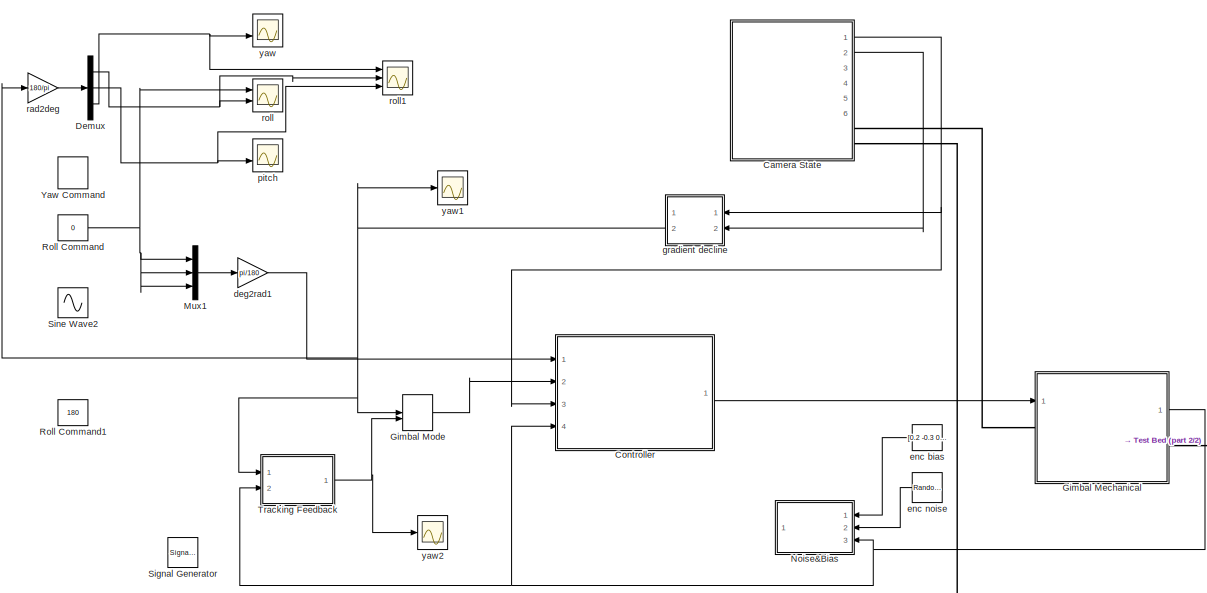
[diagram: root canvas - part 1/2, top center region]
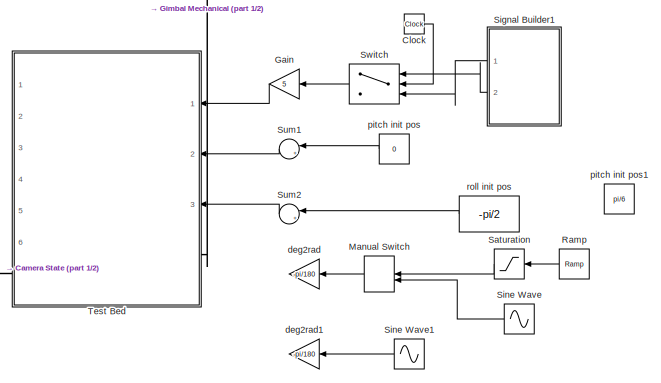
[diagram: root canvas - part 2/2, bottom right region]
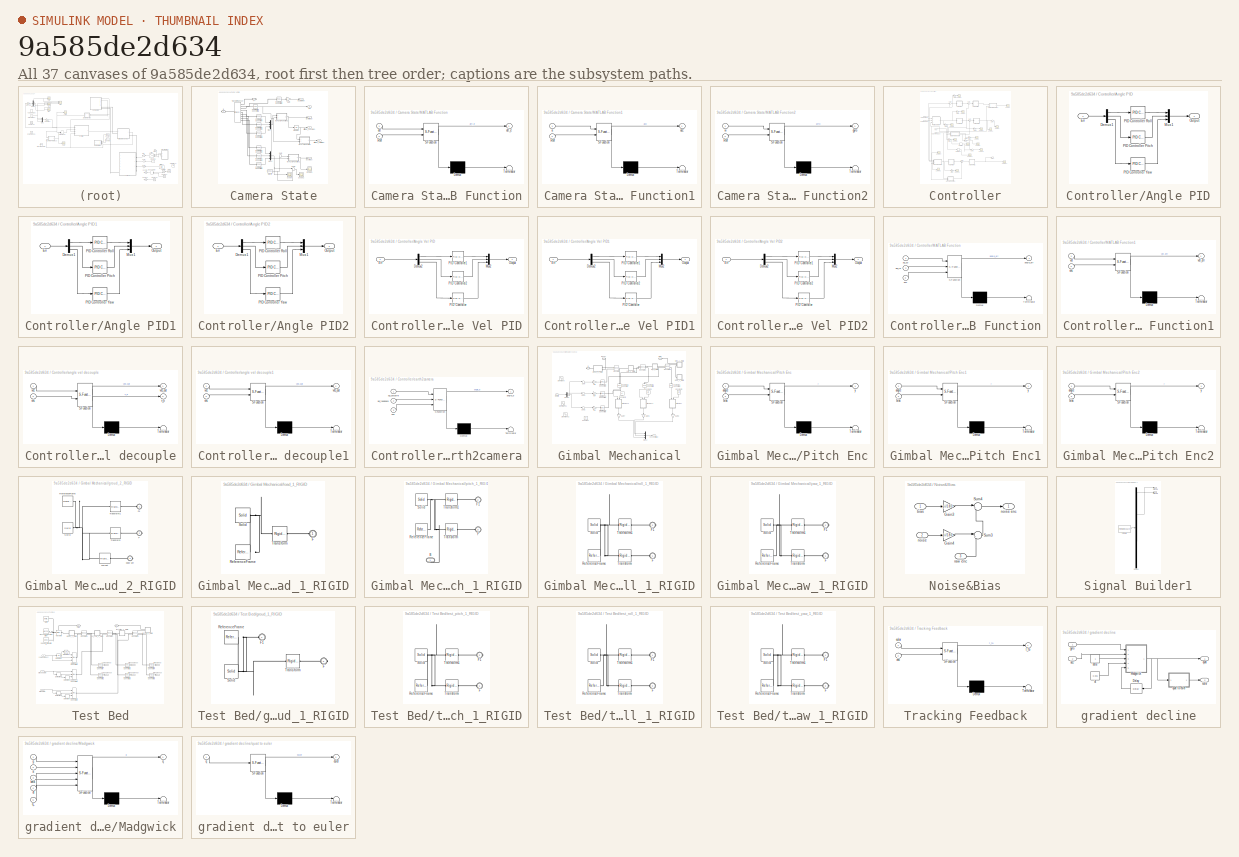
[diagram: thumbnail index - all 37 canvases of the model, root first then tree order]
MODEL slx_9a585de2d634
KIND model
CONFIG AbsTol = auto
CONFIG EnableMultiTasking = on
CONFIG FixedStep = 0.001
CONFIG MaxStep = auto
CONFIG MinStep = auto
CONFIG RelTol = 1e-3
CONFIG SampleTimeConstraint = Unconstrained
CONFIG Solver = ode14x
CONFIG SolverName = ode14x
CONFIG StartTime = 0.0
CONFIG StopTime = 10
BLOCK [SubSystem] Camera State
  Ports = [0, 6, 0, 0, 0, 0, 2]
  RequestExecContextInheritance = off
  Variant = off
BLOCK [PMIOPort] Camera State/B
  Port = 2
  Side = Right
BLOCK [PMIOPort] Camera State/F
  Port = 1
  Side = Right
BLOCK [Gain] Camera State/Gain
  Gain = -1
  OutDataTypeStr = Inherit: Inherit via internal rule
  ParamDataTypeStr = Inherit: Inherit via internal rule
  SaturateOnIntegerOverflow = off
BLOCK [Integrator] Camera State/Integrator
  Ports = [1, 1]
BLOCK [SubSystem] Camera State/MATLAB Function
  ErrorFcn = Stateflow.Translate.translate
  PermitHierarchicalResolution = ExplicitOnly
  Ports = [2, 1]
  RequestExecContextInheritance = off
  SFBlockType = MATLAB Function
  TreatAsAtomicUnit = on
  Variant = off
BLOCK [Demux] Camera State/MATLAB Function/ Demux 
  Outputs = 1
  Ports = [1, 1]
BLOCK [S-Function] Camera State/MATLAB Function/ SFunction 
  EnableBusSupport = on
  FunctionName = sf_sfun
  PortCounts = [2 2]
  Ports = [2, 2]
  SFcnIsStateOwnerBlock = off
  SFunctionDeploymentMode = off
  Tag = Stateflow S-Function gimbal_test_optm_2018_03 7
BLOCK [Terminator] Camera State/MATLAB Function/ Terminator 
BLOCK [Inport] Camera State/MATLAB Function/RM
  IconDisplay = Port number
  Port = 2
BLOCK [Inport] Camera State/MATLAB Function/att
  IconDisplay = Port number
BLOCK [Outport] Camera State/MATLAB Function/att_e
  IconDisplay = Port number
BLOCK [SubSystem] Camera State/MATLAB Function1
  ErrorFcn = Stateflow.Translate.translate
  PermitHierarchicalResolution = ExplicitOnly
  Ports = [2, 1]
  RequestExecContextInheritance = off
  SFBlockType = MATLAB Function
  TreatAsAtomicUnit = on
  Variant = off
BLOCK [Demux] Camera State/MATLAB Function1/ Demux 
  Outputs = 1
  Ports = [1, 1]
BLOCK [S-Function] Camera State/MATLAB Function1/ SFunction 
  EnableBusSupport = on
  FunctionName = sf_sfun
  PortCounts = [2 2]
  Ports = [2, 2]
  SFcnIsStateOwnerBlock = off
  SFunctionDeploymentMode = off
  Tag = Stateflow S-Function gimbal_test_optm_2018_03 13
BLOCK [Terminator] Camera State/MATLAB Function1/ Terminator 
BLOCK [Inport] Camera State/MATLAB Function1/RM
  IconDisplay = Port number
  Port = 2
BLOCK [Inport] Camera State/MATLAB Function1/a
  IconDisplay = Port number
BLOCK [Outport] Camera State/MATLAB Function1/acc
  IconDisplay = Port number
BLOCK [SubSystem] Camera State/MATLAB Function2
  ErrorFcn = Stateflow.Translate.translate
  PermitHierarchicalResolution = ExplicitOnly
  Ports = [2, 1]
  RequestExecContextInheritance = off
  SFBlockType = MATLAB Function
  TreatAsAtomicUnit = on
  Variant = off
BLOCK [Demux] Camera State/MATLAB Function2/ Demux 
  Outputs = 1
  Ports = [1, 1]
BLOCK [S-Function] Camera State/MATLAB Function2/ SFunction 
  EnableBusSupport = on
  FunctionName = sf_sfun
  PortCounts = [2 2]
  Ports = [2, 2]
  SFcnIsStateOwnerBlock = off
  SFunctionDeploymentMode = off
  Tag = Stateflow S-Function gimbal_test_optm_2018_03 11
BLOCK [Terminator] Camera State/MATLAB Function2/ Terminator 
BLOCK [Inport] Camera State/MATLAB Function2/RM
  IconDisplay = Port number
  Port = 2
BLOCK [Outport] Camera State/MATLAB Function2/gyro
  IconDisplay = Port number
BLOCK [Inport] Camera State/MATLAB Function2/w
  IconDisplay = Port number
BLOCK [Mux] Camera State/Mux
  DisplayOption = bar
  Inputs = 3
  Ports = [3, 1]
BLOCK [Mux] Camera State/Mux1
  DisplayOption = bar
  Inputs = 3
  Ports = [3, 1]
BLOCK [Reference] Camera State/PS-Simulink Converter1  REF=nesl_utility/PS-Simulink
Converter
  Ports = [0, 1, 0, 0, 0, 1]
  SourceBlock = nesl_utility/PS-Simulink\nConverter
  SourceProductBaseCode = SS
  SourceProductName = Simscape
  SourceType = PS-Simulink\nConverter
BLOCK [Reference] Camera State/PS-Simulink Converter2  REF=nesl_utility/PS-Simulink
Converter
  Ports = [0, 1, 0, 0, 0, 1]
  SourceBlock = nesl_utility/PS-Simulink\nConverter
  SourceProductBaseCode = SS
  SourceProductName = Simscape
  SourceType = PS-Simulink\nConverter
BLOCK [Reference] Camera State/PS-Simulink Converter3  REF=nesl_utility/PS-Simulink
Converter
  Ports = [0, 1, 0, 0, 0, 1]
  SourceBlock = nesl_utility/PS-Simulink\nConverter
  SourceProductBaseCode = SS
  SourceProductName = Simscape
  SourceType = PS-Simulink\nConverter
BLOCK [Reference] Camera State/PS-Simulink Converter4  REF=nesl_utility/PS-Simulink
Converter
  Ports = [0, 1, 0, 0, 0, 1]
  SourceBlock = nesl_utility/PS-Simulink\nConverter
  SourceProductBaseCode = SS
  SourceProductName = Simscape
  SourceType = PS-Simulink\nConverter
BLOCK [Reference] Camera State/PS-Simulink Converter6  REF=nesl_utility/PS-Simulink
Converter
  Ports = [0, 1, 0, 0, 0, 1]
  SourceBlock = nesl_utility/PS-Simulink\nConverter
  SourceProductBaseCode = SS
  SourceProductName = Simscape
  SourceType = PS-Simulink\nConverter
BLOCK [Reference] Camera State/PS-Simulink Converter7  REF=nesl_utility/PS-Simulink
Converter
  Ports = [0, 1, 0, 0, 0, 1]
  SourceBlock = nesl_utility/PS-Simulink\nConverter
  SourceProductBaseCode = SS
  SourceProductName = Simscape
  SourceType = PS-Simulink\nConverter
BLOCK [Reference] Camera State/PS-Simulink Converter8  REF=nesl_utility/PS-Simulink
Converter
  Ports = [0, 1, 0, 0, 0, 1]
  SourceBlock = nesl_utility/PS-Simulink\nConverter
  SourceProductBaseCode = SS
  SourceProductName = Simscape
  SourceType = PS-Simulink\nConverter
BLOCK [Reference] Camera State/PS-Simulink Converter9  REF=nesl_utility/PS-Simulink
Converter
  Ports = [0, 1, 0, 0, 0, 1]
  SourceBlock = nesl_utility/PS-Simulink\nConverter
  SourceProductBaseCode = SS
  SourceProductName = Simscape
  SourceType = PS-Simulink\nConverter
BLOCK [Outport] Camera State/RM
  IconDisplay = Port number
  Port = 4
BLOCK [Scope] Camera State/Scope
  NumInputPorts = 1
  Ports = [1]
  ScopeSpecificationString = Simulink.scopes.TimeScopeBlockCfg('CurrentConfiguration', extmgr.ConfigurationSet(extmgr.Configuration('Core','General UI',true),extmgr.Configuration('Core','Source UI',true),extmgr.Configuration('Sources','WiredSimulink',true,'DataLoggingVariableName','ScopeData2'),extmgr.Configuration('Visuals','Time Domain',true,'SerializedDisplays',{struct('MinYLimReal','-62.38144','MaxYLimReal','40.43998','YL...<+1485ch>
BLOCK [Scope] Camera State/Scope1
  NumInputPorts = 1
  Ports = [1]
  ScopeSpecificationString = Simulink.scopes.TimeScopeBlockCfg('CurrentConfiguration', extmgr.ConfigurationSet(extmgr.Configuration('Core','General UI',true),extmgr.Configuration('Core','Source UI',true),extmgr.Configuration('Sources','WiredSimulink',true,'DataLoggingVariableName','ScopeData5'),extmgr.Configuration('Visuals','Time Domain',true,'SerializedDisplays',{struct('MinYLimReal','-11.33628','MaxYLimReal','3.92654','YLa...<+1471ch>
BLOCK [Scope] Camera State/Scope2
  NumInputPorts = 1
  Ports = [1]
  ScopeSpecificationString = Simulink.scopes.TimeScopeBlockCfg('CurrentConfiguration', extmgr.ConfigurationSet(extmgr.Configuration('Core','General UI',true),extmgr.Configuration('Core','Source UI',true),extmgr.Configuration('Sources','WiredSimulink',true,'DataLoggingVariableName','ScopeData6'),extmgr.Configuration('Visuals','Time Domain',true,'SerializedDisplays',{struct('MinYLimReal','-22.29282','MaxYLimReal','8.50216','YLa...<+1435ch>
BLOCK [Sum] Camera State/Sum
  IconShape = round
  InputSameDT = off
  Inputs = |++
  OutDataTypeStr = Inherit: Inherit via internal rule
  Ports = [2, 1]
  SaturateOnIntegerOverflow = off
BLOCK [Sum] Camera State/Sum1
  IconShape = round
  InputSameDT = off
  Inputs = |++
  OutDataTypeStr = Inherit: Inherit via internal rule
  Ports = [2, 1]
  SaturateOnIntegerOverflow = off
BLOCK [Reference] Camera State/Transform Sensor  REF=sm_lib/Frames and
Transforms/Transform
Sensor
  Ports = [0, 0, 0, 0, 0, 1, 9]
  SourceBlock = sm_lib/Frames and\nTransforms/Transform\nSensor
  SourceProductBaseCode = MS
  SourceProductName = Simscape Multibody
  SourceType = Transform\nSensor
BLOCK [Outport] Camera State/acc (m//ss)
  IconDisplay = Port number
  Port = 2
BLOCK [Outport] Camera State/attitude_body (rad)
  IconDisplay = Port number
  Port = 3
BLOCK [Outport] Camera State/attitude_earth (rad)
  IconDisplay = Port number
  Port = 6
BLOCK [Constant] Camera State/gravity 
  Value = [0 0 -9.81]
BLOCK [Outport] Camera State/gyro (rad//s)
  IconDisplay = Port number
BLOCK [Outport] Camera State/quaternion 
  IconDisplay = Port number
  Port = 5
BLOCK [Clock] Clock
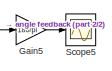
[diagram: Controller - part 1/2, top center region]
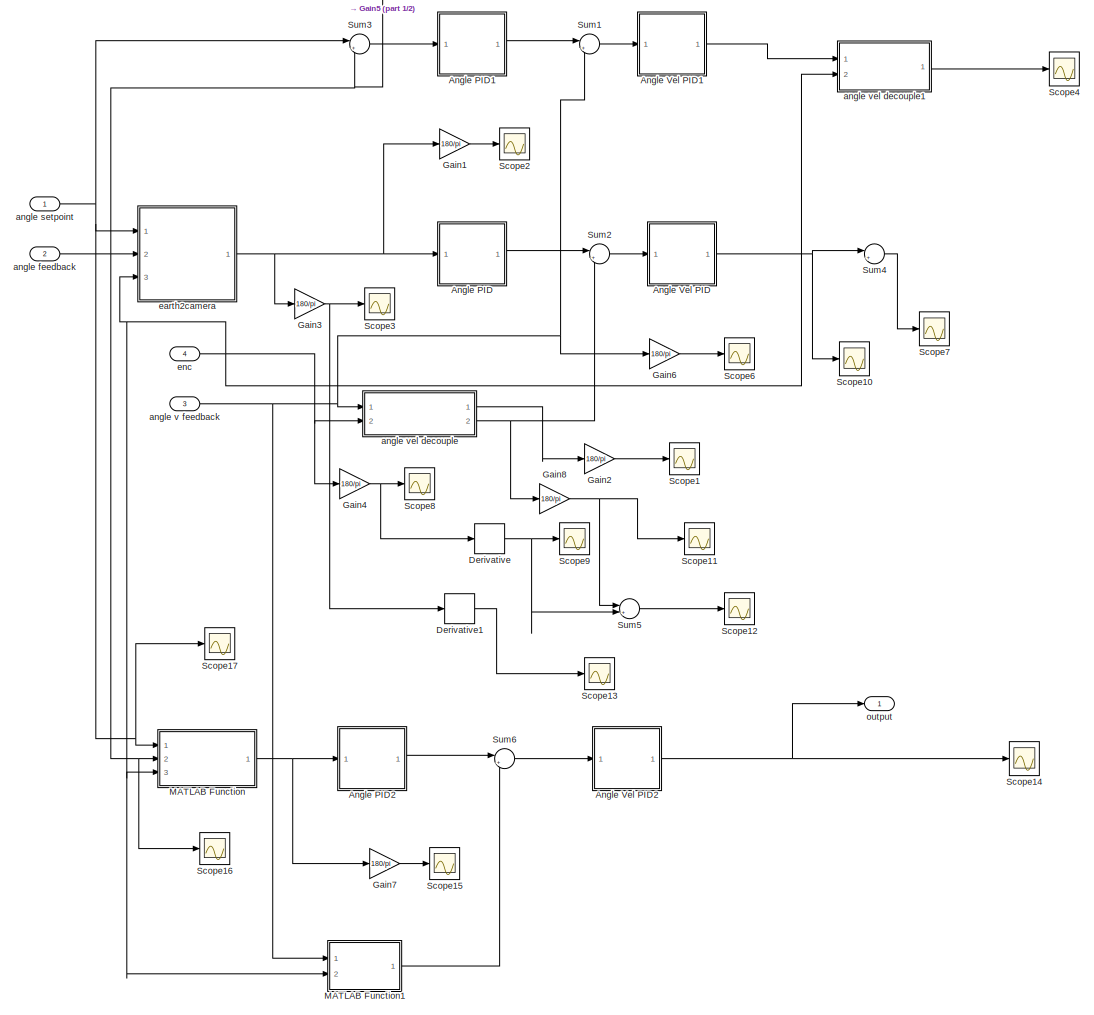
[diagram: Controller - part 2/2, most of the canvas]
BLOCK [SubSystem] Controller
  Ports = [4, 1]
  RequestExecContextInheritance = off
  TreatAsAtomicUnit = on
  Variant = off
BLOCK [SubSystem] Controller/Angle PID
  Ports = [1, 1]
  RequestExecContextInheritance = off
  Variant = off
BLOCK [Demux] Controller/Angle PID/Demux1
  DisplayOption = bar
  Outputs = 3
  Ports = [1, 3]
BLOCK [Inport] Controller/Angle PID/Err
  IconDisplay = Port number
BLOCK [Mux] Controller/Angle PID/Mux1
  DisplayOption = bar
  Inputs = 3
  Ports = [3, 1]
BLOCK [Outport] Controller/Angle PID/Output
  IconDisplay = Port number
BLOCK [Reference] Controller/Angle PID/PID Controller Pitch  REF=simulink/Continuous/PID Controller
  Ports = [1, 1]
  SourceBlock = simulink/Continuous/PID Controller
  SourceProductBaseCode = SL
  SourceProductName = Simulink
  SourceType = PID 1dof
BLOCK [Reference] Controller/Angle PID/PID Controller Roll  REF=simulink/Continuous/PID Controller
  Ports = [1, 1]
  SourceBlock = simulink/Continuous/PID Controller
  SourceProductBaseCode = SL
  SourceProductName = Simulink
  SourceType = PID 1dof
BLOCK [Reference] Controller/Angle PID/PID Controller Yaw  REF=simulink/Continuous/PID Controller
  Ports = [1, 1]
  SourceBlock = simulink/Continuous/PID Controller
  SourceProductBaseCode = SL
  SourceProductName = Simulink
  SourceType = PID 1dof
BLOCK [SubSystem] Controller/Angle PID1
  Ports = [1, 1]
  RequestExecContextInheritance = off
  Variant = off
BLOCK [Demux] Controller/Angle PID1/Demux1
  DisplayOption = bar
  Outputs = 3
  Ports = [1, 3]
BLOCK [Inport] Controller/Angle PID1/Err
  IconDisplay = Port number
BLOCK [Mux] Controller/Angle PID1/Mux1
  DisplayOption = bar
  Inputs = 3
  Ports = [3, 1]
BLOCK [Outport] Controller/Angle PID1/Output
  IconDisplay = Port number
BLOCK [Reference] Controller/Angle PID1/PID Controller Pitch  REF=simulink/Continuous/PID Controller
  Ports = [1, 1]
  SourceBlock = simulink/Continuous/PID Controller
  SourceProductBaseCode = SL
  SourceProductName = Simulink
  SourceType = PID 1dof
BLOCK [Reference] Controller/Angle PID1/PID Controller Roll  REF=simulink/Continuous/PID Controller
  Ports = [1, 1]
  SourceBlock = simulink/Continuous/PID Controller
  SourceProductBaseCode = SL
  SourceProductName = Simulink
  SourceType = PID 1dof
BLOCK [Reference] Controller/Angle PID1/PID Controller Yaw  REF=simulink/Continuous/PID Controller
  Ports = [1, 1]
  SourceBlock = simulink/Continuous/PID Controller
  SourceProductBaseCode = SL
  SourceProductName = Simulink
  SourceType = PID 1dof
BLOCK [SubSystem] Controller/Angle PID2
  Ports = [1, 1]
  RequestExecContextInheritance = off
  Variant = off
BLOCK [Demux] Controller/Angle PID2/Demux1
  DisplayOption = bar
  Outputs = 3
  Ports = [1, 3]
BLOCK [Inport] Controller/Angle PID2/Err
  IconDisplay = Port number
BLOCK [Mux] Controller/Angle PID2/Mux1
  DisplayOption = bar
  Inputs = 3
  Ports = [3, 1]
BLOCK [Outport] Controller/Angle PID2/Output
  IconDisplay = Port number
BLOCK [Reference] Controller/Angle PID2/PID Controller Pitch  REF=simulink/Continuous/PID Controller
  Ports = [1, 1]
  SourceBlock = simulink/Continuous/PID Controller
  SourceProductBaseCode = SL
  SourceProductName = Simulink
  SourceType = PID 1dof
BLOCK [Reference] Controller/Angle PID2/PID Controller Roll  REF=simulink/Continuous/PID Controller
  Ports = [1, 1]
  SourceBlock = simulink/Continuous/PID Controller
  SourceProductBaseCode = SL
  SourceProductName = Simulink
  SourceType = PID 1dof
BLOCK [Reference] Controller/Angle PID2/PID Controller Yaw  REF=simulink/Continuous/PID Controller
  Ports = [1, 1]
  SourceBlock = simulink/Continuous/PID Controller
  SourceProductBaseCode = SL
  SourceProductName = Simulink
  SourceType = PID 1dof
BLOCK [SubSystem] Controller/Angle Vel PID
  Ports = [1, 1]
  RequestExecContextInheritance = off
  Variant = off
BLOCK [Demux] Controller/Angle Vel PID/Demux2
  DisplayOption = bar
  Outputs = 3
  Ports = [1, 3]
BLOCK [Inport] Controller/Angle Vel PID/Err
  IconDisplay = Port number
BLOCK [Mux] Controller/Angle Vel PID/Mux2
  DisplayOption = bar
  Inputs = 3
  Ports = [3, 1]
BLOCK [Outport] Controller/Angle Vel PID/Output
  IconDisplay = Port number
BLOCK [Reference] Controller/Angle Vel PID/PID Controller  REF=simulink/Continuous/PID Controller
  Ports = [1, 1]
  SourceBlock = simulink/Continuous/PID Controller
  SourceProductBaseCode = SL
  SourceProductName = Simulink
  SourceType = PID 1dof
BLOCK [Reference] Controller/Angle Vel PID/PID Controller1  REF=simulink/Continuous/PID Controller
  Ports = [1, 1]
  SourceBlock = simulink/Continuous/PID Controller
  SourceProductBaseCode = SL
  SourceProductName = Simulink
  SourceType = PID 1dof
BLOCK [Reference] Controller/Angle Vel PID/PID Controller2  REF=simulink/Continuous/PID Controller
  Ports = [1, 1]
  SourceBlock = simulink/Continuous/PID Controller
  SourceProductBaseCode = SL
  SourceProductName = Simulink
  SourceType = PID 1dof
BLOCK [SubSystem] Controller/Angle Vel PID1
  Ports = [1, 1]
  RequestExecContextInheritance = off
  Variant = off
BLOCK [Demux] Controller/Angle Vel PID1/Demux2
  DisplayOption = bar
  Outputs = 3
  Ports = [1, 3]
BLOCK [Inport] Controller/Angle Vel PID1/Err
  IconDisplay = Port number
BLOCK [Mux] Controller/Angle Vel PID1/Mux2
  DisplayOption = bar
  Inputs = 3
  Ports = [3, 1]
BLOCK [Outport] Controller/Angle Vel PID1/Output
  IconDisplay = Port number
BLOCK [Reference] Controller/Angle Vel PID1/PID Controller  REF=simulink/Continuous/PID Controller
  Ports = [1, 1]
  SourceBlock = simulink/Continuous/PID Controller
  SourceProductBaseCode = SL
  SourceProductName = Simulink
  SourceType = PID 1dof
BLOCK [Reference] Controller/Angle Vel PID1/PID Controller1  REF=simulink/Continuous/PID Controller
  Ports = [1, 1]
  SourceBlock = simulink/Continuous/PID Controller
  SourceProductBaseCode = SL
  SourceProductName = Simulink
  SourceType = PID 1dof
BLOCK [Reference] Controller/Angle Vel PID1/PID Controller2  REF=simulink/Continuous/PID Controller
  Ports = [1, 1]
  SourceBlock = simulink/Continuous/PID Controller
  SourceProductBaseCode = SL
  SourceProductName = Simulink
  SourceType = PID 1dof
BLOCK [SubSystem] Controller/Angle Vel PID2
  Ports = [1, 1]
  RequestExecContextInheritance = off
  Variant = off
BLOCK [Demux] Controller/Angle Vel PID2/Demux2
  DisplayOption = bar
  Outputs = 3
  Ports = [1, 3]
BLOCK [Inport] Controller/Angle Vel PID2/Err
  IconDisplay = Port number
BLOCK [Mux] Controller/Angle Vel PID2/Mux2
  DisplayOption = bar
  Inputs = 3
  Ports = [3, 1]
BLOCK [Outport] Controller/Angle Vel PID2/Output
  IconDisplay = Port number
BLOCK [Reference] Controller/Angle Vel PID2/PID Controller  REF=simulink/Continuous/PID Controller
  Ports = [1, 1]
  SourceBlock = simulink/Continuous/PID Controller
  SourceProductBaseCode = SL
  SourceProductName = Simulink
  SourceType = PID 1dof
BLOCK [Reference] Controller/Angle Vel PID2/PID Controller1  REF=simulink/Continuous/PID Controller
  Ports = [1, 1]
  SourceBlock = simulink/Continuous/PID Controller
  SourceProductBaseCode = SL
  SourceProductName = Simulink
  SourceType = PID 1dof
BLOCK [Reference] Controller/Angle Vel PID2/PID Controller2  REF=simulink/Continuous/PID Controller
  Ports = [1, 1]
  SourceBlock = simulink/Continuous/PID Controller
  SourceProductBaseCode = SL
  SourceProductName = Simulink
  SourceType = PID 1dof
BLOCK [Derivative] Controller/Derivative
BLOCK [Derivative] Controller/Derivative1
BLOCK [Gain] Controller/Gain1
  Gain = 180/pi
  OutDataTypeStr = Inherit: Inherit via internal rule
  ParamDataTypeStr = Inherit: Inherit via internal rule
  SaturateOnIntegerOverflow = off
BLOCK [Gain] Controller/Gain2
  Gain = 180/pi
  OutDataTypeStr = Inherit: Inherit via internal rule
  ParamDataTypeStr = Inherit: Inherit via internal rule
  SaturateOnIntegerOverflow = off
BLOCK [Gain] Controller/Gain3
  Gain = 180/pi
  OutDataTypeStr = Inherit: Inherit via internal rule
  ParamDataTypeStr = Inherit: Inherit via internal rule
  SaturateOnIntegerOverflow = off
BLOCK [Gain] Controller/Gain4
  Gain = 180/pi
  OutDataTypeStr = Inherit: Inherit via internal rule
  ParamDataTypeStr = Inherit: Inherit via internal rule
  SaturateOnIntegerOverflow = off
BLOCK [Gain] Controller/Gain5
  Gain = 180/pi
  OutDataTypeStr = Inherit: Inherit via internal rule
  ParamDataTypeStr = Inherit: Inherit via internal rule
  SaturateOnIntegerOverflow = off
BLOCK [Gain] Controller/Gain6
  Gain = 180/pi
  OutDataTypeStr = Inherit: Inherit via internal rule
  ParamDataTypeStr = Inherit: Inherit via internal rule
  SaturateOnIntegerOverflow = off
BLOCK [Gain] Controller/Gain7
  Gain = 180/pi
  OutDataTypeStr = Inherit: Inherit via internal rule
  ParamDataTypeStr = Inherit: Inherit via internal rule
  SaturateOnIntegerOverflow = off
BLOCK [Gain] Controller/Gain8
  Gain = 180/pi
  OutDataTypeStr = Inherit: Inherit via internal rule
  ParamDataTypeStr = Inherit: Inherit via internal rule
  SaturateOnIntegerOverflow = off
BLOCK [SubSystem] Controller/MATLAB Function
  ErrorFcn = Stateflow.Translate.translate
  PermitHierarchicalResolution = ExplicitOnly
  Ports = [3, 1]
  RequestExecContextInheritance = off
  SFBlockType = MATLAB Function
  TreatAsAtomicUnit = on
  Variant = off
BLOCK [Demux] Controller/MATLAB Function/ Demux 
  Outputs = 1
  Ports = [1, 1]
BLOCK [S-Function] Controller/MATLAB Function/ SFunction 
  EnableBusSupport = on
  FunctionName = sf_sfun
  PortCounts = [3 2]
  Ports = [3, 2]
  SFcnIsStateOwnerBlock = off
  SFunctionDeploymentMode = off
  Tag = Stateflow S-Function gimbal_test_optm_2018_03 8
BLOCK [Terminator] Controller/MATLAB Function/ Terminator 
BLOCK [Inport] Controller/MATLAB Function/ag_fb
  IconDisplay = Port number
  Port = 2
BLOCK [Inport] Controller/MATLAB Function/ag_sp
  IconDisplay = Port number
BLOCK [Outport] Controller/MATLAB Function/angle_err
  IconDisplay = Port number
BLOCK [Inport] Controller/MATLAB Function/enc
  IconDisplay = Port number
  Port = 3
BLOCK [SubSystem] Controller/MATLAB Function1
  ErrorFcn = Stateflow.Translate.translate
  PermitHierarchicalResolution = ExplicitOnly
  Ports = [2, 1]
  RequestExecContextInheritance = off
  SFBlockType = MATLAB Function
  TreatAsAtomicUnit = on
  Variant = off
BLOCK [Demux] Controller/MATLAB Function1/ Demux 
  Outputs = 1
  Ports = [1, 1]
BLOCK [S-Function] Controller/MATLAB Function1/ SFunction 
  EnableBusSupport = on
  FunctionName = sf_sfun
  PortCounts = [2 2]
  Ports = [2, 2]
  SFcnIsStateOwnerBlock = off
  SFunctionDeploymentMode = off
  Tag = Stateflow S-Function gimbal_test_optm_2018_03 12
BLOCK [Terminator] Controller/MATLAB Function1/ Terminator 
BLOCK [Inport] Controller/MATLAB Function1/enc
  IconDisplay = Port number
  Port = 2
BLOCK [Inport] Controller/MATLAB Function1/vel
  IconDisplay = Port number
BLOCK [Outport] Controller/MATLAB Function1/vel_err
  IconDisplay = Port number
BLOCK [Scope] Controller/Scope1
  NumInputPorts = 1
  Ports = [1]
  ScopeSpecificationString = Simulink.scopes.TimeScopeBlockCfg('CurrentConfiguration', extmgr.ConfigurationSet(extmgr.Configuration('Core','General UI',true),extmgr.Configuration('Core','Source UI',true),extmgr.Configuration('Sources','WiredSimulink',true,'DataLoggingVariableName','ScopeData3'),extmgr.Configuration('Visuals','Time Domain',true,'SerializedDisplays',{struct('MinYLimReal','-435.99121','MaxYLimReal','341.04444','...<+1429ch>
BLOCK [Scope] Controller/Scope10
  NumInputPorts = 1
  Ports = [1]
  ScopeSpecificationString = Simulink.scopes.TimeScopeBlockCfg('CurrentConfiguration', extmgr.ConfigurationSet(extmgr.Configuration('Core','General UI',true),extmgr.Configuration('Core','Source UI',true),extmgr.Configuration('Sources','WiredSimulink',true,'DataLoggingVariableName','ScopeData8'),extmgr.Configuration('Visuals','Time Domain',true,'SerializedDisplays',{struct('MinYLimReal','-13.15788','MaxYLimReal','14.61117','YL...<+1462ch>
BLOCK [Scope] Controller/Scope11
  NumInputPorts = 1
  Ports = [1]
  ScopeSpecificationString = Simulink.scopes.TimeScopeBlockCfg('CurrentConfiguration', extmgr.ConfigurationSet(extmgr.Configuration('Core','General UI',true),extmgr.Configuration('Core','Source UI',true),extmgr.Configuration('Sources','WiredSimulink',true,'DataLoggingVariableName','ScopeData10'),extmgr.Configuration('Visuals','Time Domain',true,'SerializedDisplays',{struct('MinYLimReal','-2127.99792','MaxYLimReal','2054.90347...<+1456ch>
BLOCK [Scope] Controller/Scope12
  NumInputPorts = 1
  Ports = [1]
  ScopeSpecificationString = Simulink.scopes.TimeScopeBlockCfg('CurrentConfiguration', extmgr.ConfigurationSet(extmgr.Configuration('Core','General UI',true),extmgr.Configuration('Core','Source UI',true),extmgr.Configuration('Sources','WiredSimulink',true,'DataLoggingVariableName','ScopeData11'),extmgr.Configuration('Visuals','Time Domain',true,'SerializedDisplays',{struct('MinYLimReal','-450001.4782','MaxYLimReal','449975.08...<+1446ch>
BLOCK [Scope] Controller/Scope13
  NumInputPorts = 1
  Ports = [1]
  ScopeSpecificationString = Simulink.scopes.TimeScopeBlockCfg('CurrentConfiguration', extmgr.ConfigurationSet(extmgr.Configuration('Core','General UI',true),extmgr.Configuration('Core','Source UI',true),extmgr.Configuration('Sources','WiredSimulink',true,'DataLoggingVariableName','ScopeData12'),extmgr.Configuration('Visuals','Time Domain',true,'SerializedDisplays',{struct('MinYLimReal','-2246.02336','MaxYLimReal','1569.04695...<+1455ch>
BLOCK [Scope] Controller/Scope14
  NumInputPorts = 1
  Ports = [1]
  ScopeSpecificationString = Simulink.scopes.TimeScopeBlockCfg('CurrentConfiguration', extmgr.ConfigurationSet(extmgr.Configuration('Core','General UI',true),extmgr.Configuration('Core','Source UI',true),extmgr.Configuration('Sources','WiredSimulink',true,'DataLoggingVariableName','ScopeData1'),extmgr.Configuration('Visuals','Time Domain',true,'SerializedDisplays',{struct('MinYLimReal','-12.5','MaxYLimReal','12.5','YLabelReal...<+1423ch>
BLOCK [Scope] Controller/Scope15
  NumInputPorts = 1
  Ports = [1]
  ScopeSpecificationString = Simulink.scopes.TimeScopeBlockCfg('CurrentConfiguration', extmgr.ConfigurationSet(extmgr.Configuration('Core','General UI',true),extmgr.Configuration('Core','Source UI',true),extmgr.Configuration('Sources','WiredSimulink',true,'DataLoggingVariableName','ScopeData2'),extmgr.Configuration('Visuals','Time Domain',true,'SerializedDisplays',{struct('MinYLimReal','-224.99596','MaxYLimReal','224.99745','...<+1429ch>
BLOCK [Scope] Controller/Scope16
  NumInputPorts = 1
  Ports = [1]
  ScopeSpecificationString = Simulink.scopes.TimeScopeBlockCfg('CurrentConfiguration', extmgr.ConfigurationSet(extmgr.Configuration('Core','General UI',true),extmgr.Configuration('Core','Source UI',true),extmgr.Configuration('Sources','WiredSimulink',true,'DataLoggingVariableName','ScopeData2'),extmgr.Configuration('Visuals','Time Domain',true,'SerializedDisplays',{struct('MinYLimReal','-3.92634','MaxYLimReal','3.92601','YLab...<+1442ch>
BLOCK [Scope] Controller/Scope17
  NumInputPorts = 1
  Ports = [1]
  ScopeSpecificationString = Simulink.scopes.TimeScopeBlockCfg('CurrentConfiguration', extmgr.ConfigurationSet(extmgr.Configuration('Core','General UI',true),extmgr.Configuration('Core','Source UI',true),extmgr.Configuration('Sources','WiredSimulink',true,'DataLoggingVariableName','ScopeData3'),extmgr.Configuration('Visuals','Time Domain',true,'SerializedDisplays',{struct('MinYLimReal','-1.00000','MaxYLimReal','1.00000','YLab...<+1442ch>
BLOCK [Scope] Controller/Scope2
  NumInputPorts = 1
  Ports = [1]
  ScopeSpecificationString = Simulink.scopes.TimeScopeBlockCfg('CurrentConfiguration', extmgr.ConfigurationSet(extmgr.Configuration('Core','General UI',true),extmgr.Configuration('Core','Source UI',true),extmgr.Configuration('Sources','WiredSimulink',true,'DataLoggingVariableName','ScopeData4'),extmgr.Configuration('Visuals','Time Domain',true,'SerializedDisplays',{struct('MinYLimReal','-233.60532','MaxYLimReal','303.26334','...<+1429ch>
BLOCK [Scope] Controller/Scope3
  NumInputPorts = 1
  Ports = [1]
  ScopeSpecificationString = Simulink.scopes.TimeScopeBlockCfg('CurrentConfiguration', extmgr.ConfigurationSet(extmgr.Configuration('Core','General UI',true),extmgr.Configuration('Core','Source UI',true),extmgr.Configuration('Sources','WiredSimulink',true,'DataLoggingVariableName','ScopeData6'),extmgr.Configuration('Visuals','Time Domain',true,'SerializedDisplays',{struct('MinYLimReal','-1.25179','MaxYLimReal','1.1258','YLabe...<+1431ch>
BLOCK [Scope] Controller/Scope4
  NumInputPorts = 1
  Ports = [1]
  ScopeSpecificationString = Simulink.scopes.TimeScopeBlockCfg('CurrentConfiguration', extmgr.ConfigurationSet(extmgr.Configuration('Core','General UI',true),extmgr.Configuration('Core','Source UI',true),extmgr.Configuration('Sources','WiredSimulink',true,'DataLoggingVariableName','ScopeData3'),extmgr.Configuration('Visuals','Time Domain',true,'SerializedDisplays',{struct('MinYLimReal','-13.78266','MaxYLimReal','2.53326','YLa...<+1460ch>
BLOCK [Scope] Controller/Scope5
  NumInputPorts = 1
  Ports = [1]
  ScopeSpecificationString = Simulink.scopes.TimeScopeBlockCfg('CurrentConfiguration', extmgr.ConfigurationSet(extmgr.Configuration('Core','General UI',true),extmgr.Configuration('Core','Source UI',true),extmgr.Configuration('Sources','WiredSimulink',true,'DataLoggingVariableName','ScopeData1'),extmgr.Configuration('Visuals','Time Domain',true,'SerializedDisplays',{struct('MinYLimReal','-224.9978','MaxYLimReal','224.99058','Y...<+1423ch>
BLOCK [Scope] Controller/Scope6
  NumInputPorts = 1
  Ports = [1]
  ScopeSpecificationString = Simulink.scopes.TimeScopeBlockCfg('CurrentConfiguration', extmgr.ConfigurationSet(extmgr.Configuration('Core','General UI',true),extmgr.Configuration('Core','Source UI',true),extmgr.Configuration('Sources','WiredSimulink',true,'DataLoggingVariableName','ScopeData2'),extmgr.Configuration('Visuals','Time Domain',true,'SerializedDisplays',{struct('MinYLimReal','-467.04289','MaxYLimReal','370.30723','...<+1428ch>
BLOCK [Scope] Controller/Scope7
  NumInputPorts = 1
  Ports = [1]
  ScopeSpecificationString = Simulink.scopes.TimeScopeBlockCfg('CurrentConfiguration', extmgr.ConfigurationSet(extmgr.Configuration('Core','General UI',true),extmgr.Configuration('Core','Source UI',true),extmgr.Configuration('Sources','WiredSimulink',true,'DataLoggingVariableName','ScopeData4'),extmgr.Configuration('Visuals','Time Domain',true,'SerializedDisplays',{struct('MinYLimReal','-11.89221','MaxYLimReal','7.02992','YLa...<+1415ch>
BLOCK [Scope] Controller/Scope8
  NumInputPorts = 1
  Ports = [1]
  ScopeSpecificationString = Simulink.scopes.TimeScopeBlockCfg('CurrentConfiguration', extmgr.ConfigurationSet(extmgr.Configuration('Core','General UI',true),extmgr.Configuration('Core','Source UI',true),extmgr.Configuration('Sources','WiredSimulink',true,'DataLoggingVariableName','ScopeData5'),extmgr.Configuration('Visuals','Time Domain',true,'SerializedDisplays',{struct('MinYLimReal','-224.98903','MaxYLimReal','224.995','YL...<+1419ch>
BLOCK [Scope] Controller/Scope9
  NumInputPorts = 1
  Ports = [1]
  ScopeSpecificationString = Simulink.scopes.TimeScopeBlockCfg('CurrentConfiguration', extmgr.ConfigurationSet(extmgr.Configuration('Core','General UI',true),extmgr.Configuration('Core','Source UI',true),extmgr.Configuration('Sources','WiredSimulink',true,'DataLoggingVariableName','ScopeData9'),extmgr.Configuration('Visuals','Time Domain',true,'SerializedDisplays',{struct('MinYLimReal','-1149.47294','MaxYLimReal','1385.68005'...<+1470ch>
BLOCK [Sum] Controller/Sum1
  IconShape = round
  InputSameDT = off
  Inputs = |+-
  OutDataTypeStr = Inherit: Inherit via internal rule
  Ports = [2, 1]
  SaturateOnIntegerOverflow = off
BLOCK [Sum] Controller/Sum2
  IconShape = round
  InputSameDT = off
  Inputs = |+-
  OutDataTypeStr = Inherit: Inherit via internal rule
  Ports = [2, 1]
  SaturateOnIntegerOverflow = off
BLOCK [Sum] Controller/Sum3
  IconShape = round
  InputSameDT = off
  Inputs = |+-
  OutDataTypeStr = Inherit: Inherit via internal rule
  Ports = [2, 1]
  SaturateOnIntegerOverflow = off
BLOCK [Sum] Controller/Sum4
  IconShape = round
  InputSameDT = off
  Inputs = |+-
  OutDataTypeStr = Inherit: Inherit via internal rule
  Ports = [2, 1]
  SaturateOnIntegerOverflow = off
BLOCK [Sum] Controller/Sum5
  IconShape = round
  InputSameDT = off
  Inputs = |+-
  OutDataTypeStr = Inherit: Inherit via internal rule
  Ports = [2, 1]
  SaturateOnIntegerOverflow = off
BLOCK [Sum] Controller/Sum6
  IconShape = round
  InputSameDT = off
  Inputs = |+-
  OutDataTypeStr = Inherit: Inherit via internal rule
  Ports = [2, 1]
  SaturateOnIntegerOverflow = off
BLOCK [Inport] Controller/angle feedback
  IconDisplay = Port number
  Port = 2
BLOCK [Inport] Controller/angle setpoint
  IconDisplay = Port number
BLOCK [Inport] Controller/angle v feedback
  IconDisplay = Port number
  Port = 3
BLOCK [SubSystem] Controller/angle vel decouple
  ErrorFcn = Stateflow.Translate.translate
  PermitHierarchicalResolution = ExplicitOnly
  Ports = [2, 2]
  RequestExecContextInheritance = off
  SFBlockType = MATLAB Function
  TreatAsAtomicUnit = on
  Variant = off
BLOCK [Demux] Controller/angle vel decouple/ Demux 
  Outputs = 1
  Ports = [1, 1]
BLOCK [S-Function] Controller/angle vel decouple/ SFunction 
  EnableBusSupport = on
  FunctionName = sf_sfun
  PortCounts = [2 3]
  Ports = [2, 3]
  SFcnIsStateOwnerBlock = off
  SFunctionDeploymentMode = off
  Tag = Stateflow S-Function gimbal_test_optm_2018_03 9
BLOCK [Terminator] Controller/angle vel decouple/ Terminator 
BLOCK [Inport] Controller/angle vel decouple/enc
  IconDisplay = Port number
  Port = 2
BLOCK [Outport] Controller/angle vel decouple/v_b
  IconDisplay = Port number
  Port = 2
BLOCK [Inport] Controller/angle vel decouple/vec
  IconDisplay = Port number
BLOCK [Outport] Controller/angle vel decouple/vec_out
  IconDisplay = Port number
BLOCK [SubSystem] Controller/angle vel decouple1
  ErrorFcn = Stateflow.Translate.translate
  PermitHierarchicalResolution = ExplicitOnly
  Ports = [2, 1]
  RequestExecContextInheritance = off
  SFBlockType = MATLAB Function
  TreatAsAtomicUnit = on
  Variant = off
BLOCK [Demux] Controller/angle vel decouple1/ Demux 
  Outputs = 1
  Ports = [1, 1]
BLOCK [S-Function] Controller/angle vel decouple1/ SFunction 
  EnableBusSupport = on
  FunctionName = sf_sfun
  PortCounts = [2 2]
  Ports = [2, 2]
  SFcnIsStateOwnerBlock = off
  SFunctionDeploymentMode = off
  Tag = Stateflow S-Function gimbal_test_optm_2018_03 10
BLOCK [Terminator] Controller/angle vel decouple1/ Terminator 
BLOCK [Inport] Controller/angle vel decouple1/enc
  IconDisplay = Port number
  Port = 2
BLOCK [Inport] Controller/angle vel decouple1/vec
  IconDisplay = Port number
BLOCK [Outport] Controller/angle vel decouple1/vec_out
  IconDisplay = Port number
BLOCK [SubSystem] Controller/earth2camera
  ErrorFcn = Stateflow.Translate.translate
  PermitHierarchicalResolution = ExplicitOnly
  Ports = [3, 1]
  RequestExecContextInheritance = off
  SFBlockType = MATLAB Function
  TreatAsAtomicUnit = on
  Variant = off
BLOCK [Demux] Controller/earth2camera/ Demux 
  Outputs = 1
  Ports = [1, 1]
BLOCK [S-Function] Controller/earth2camera/ SFunction 
  EnableBusSupport = on
  FunctionName = sf_sfun
  PortCounts = [3 2]
  Ports = [3, 2]
  SFcnIsStateOwnerBlock = off
  SFunctionDeploymentMode = off
  Tag = Stateflow S-Function gimbal_test_optm_2018_03 2
BLOCK [Terminator] Controller/earth2camera/ Terminator 
BLOCK [Inport] Controller/earth2camera/ag_feedback
  IconDisplay = Port number
  Port = 2
BLOCK [Inport] Controller/earth2camera/ag_setpoint
  IconDisplay = Port number
BLOCK [Outport] Controller/earth2camera/angle_e
  IconDisplay = Port number
BLOCK [Inport] Controller/earth2camera/enc
  IconDisplay = Port number
  Port = 3
BLOCK [Inport] Controller/enc 
  IconDisplay = Port number
  Port = 4
BLOCK [Outport] Controller/output
  IconDisplay = Port number
BLOCK [Demux] Demux
  DisplayOption = bar
  Outputs = 3
  Ports = [1, 3]
BLOCK [Gain] Gain
  Gain = 5
  OutDataTypeStr = Inherit: Inherit via internal rule
  ParamDataTypeStr = Inherit: Inherit via internal rule
  SaturateOnIntegerOverflow = off
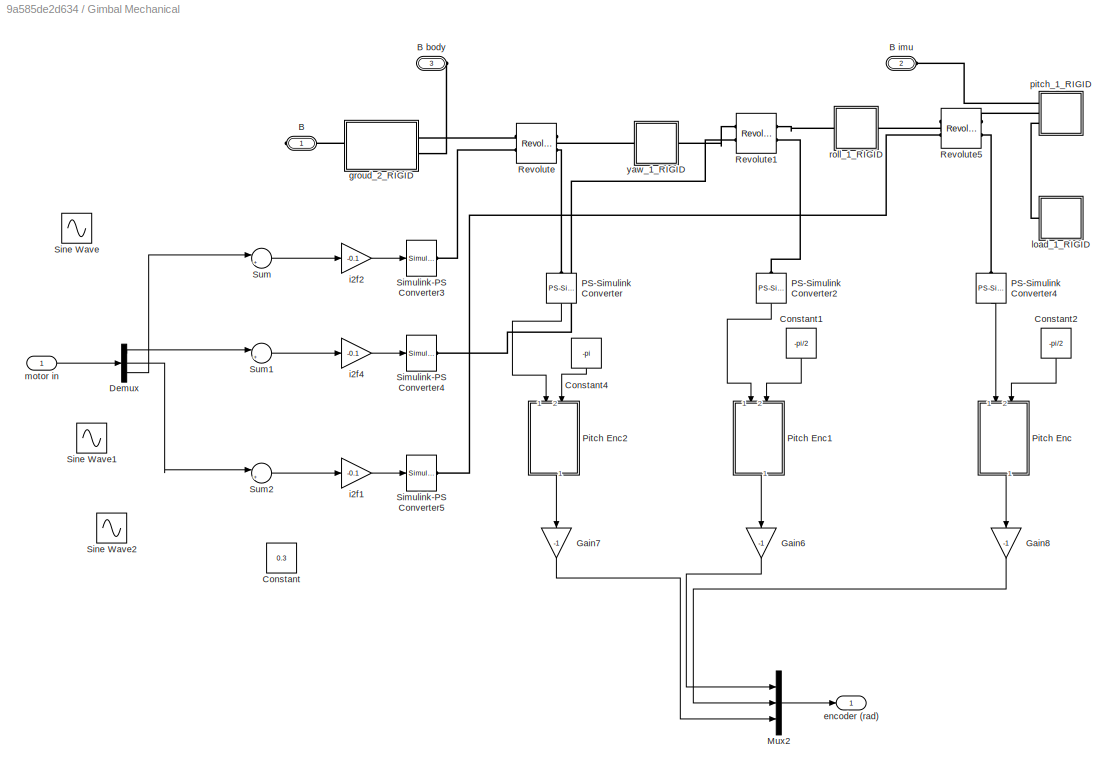
BLOCK [SubSystem] Gimbal Mechanical
  Ports = [1, 1, 0, 0, 0, 2, 1]
  RequestExecContextInheritance = off
  Variant = off
BLOCK [PMIOPort] Gimbal Mechanical/B
  Port = 1
  Side = Right
BLOCK [PMIOPort] Gimbal Mechanical/B body
  Port = 3
  Side = Left
BLOCK [PMIOPort] Gimbal Mechanical/B imu
  Port = 2
  Side = Left
BLOCK [Constant] Gimbal Mechanical/Constant
  Value = 0.3
BLOCK [Constant] Gimbal Mechanical/Constant1
  Value = -pi/2
BLOCK [Constant] Gimbal Mechanical/Constant2
  Value = -pi/2
BLOCK [Constant] Gimbal Mechanical/Constant4
  Value = -pi
BLOCK [Demux] Gimbal Mechanical/Demux
  DisplayOption = bar
  Outputs = 3
  Ports = [1, 3]
BLOCK [Gain] Gimbal Mechanical/Gain6
  Gain = -1
  OutDataTypeStr = Inherit: Inherit via internal rule
  ParamDataTypeStr = Inherit: Inherit via internal rule
  SaturateOnIntegerOverflow = off
BLOCK [Gain] Gimbal Mechanical/Gain7
  Gain = -1
  OutDataTypeStr = Inherit: Inherit via internal rule
  ParamDataTypeStr = Inherit: Inherit via internal rule
  SaturateOnIntegerOverflow = off
BLOCK [Gain] Gimbal Mechanical/Gain8
  Gain = -1
  OutDataTypeStr = Inherit: Inherit via internal rule
  ParamDataTypeStr = Inherit: Inherit via internal rule
  SaturateOnIntegerOverflow = off
BLOCK [Mux] Gimbal Mechanical/Mux2
  DisplayOption = bar
  Inputs = 3
  Ports = [3, 1]
BLOCK [Reference] Gimbal Mechanical/PS-Simulink Converter  REF=nesl_utility/PS-Simulink
Converter
  Ports = [0, 1, 0, 0, 0, 1]
  SourceBlock = nesl_utility/PS-Simulink\nConverter
  SourceProductBaseCode = SS
  SourceProductName = Simscape
  SourceType = PS-Simulink\nConverter
BLOCK [Reference] Gimbal Mechanical/PS-Simulink Converter2  REF=nesl_utility/PS-Simulink
Converter
  Ports = [0, 1, 0, 0, 0, 1]
  SourceBlock = nesl_utility/PS-Simulink\nConverter
  SourceProductBaseCode = SS
  SourceProductName = Simscape
  SourceType = PS-Simulink\nConverter
BLOCK [Reference] Gimbal Mechanical/PS-Simulink Converter4  REF=nesl_utility/PS-Simulink
Converter
  Ports = [0, 1, 0, 0, 0, 1]
  SourceBlock = nesl_utility/PS-Simulink\nConverter
  SourceProductBaseCode = SS
  SourceProductName = Simscape
  SourceType = PS-Simulink\nConverter
BLOCK [SubSystem] Gimbal Mechanical/Pitch Enc
  ErrorFcn = Stateflow.Translate.translate
  PermitHierarchicalResolution = ExplicitOnly
  Ports = [2, 1]
  RequestExecContextInheritance = off
  SFBlockType = MATLAB Function
  TreatAsAtomicUnit = on
  Variant = off
BLOCK [Demux] Gimbal Mechanical/Pitch Enc/ Demux 
  Outputs = 1
  Ports = [1, 1]
BLOCK [S-Function] Gimbal Mechanical/Pitch Enc/ SFunction 
  EnableBusSupport = on
  FunctionName = sf_sfun
  PortCounts = [2 2]
  Ports = [2, 2]
  SFcnIsStateOwnerBlock = off
  SFunctionDeploymentMode = off
  Tag = Stateflow S-Function gimbal_test_optm_2018_03 4
BLOCK [Terminator] Gimbal Mechanical/Pitch Enc/ Terminator 
BLOCK [Inport] Gimbal Mechanical/Pitch Enc/angle
  IconDisplay = Port number
BLOCK [Inport] Gimbal Mechanical/Pitch Enc/bias
  IconDisplay = Port number
  Port = 2
BLOCK [Outport] Gimbal Mechanical/Pitch Enc/y
  IconDisplay = Port number
BLOCK [SubSystem] Gimbal Mechanical/Pitch Enc1
  ErrorFcn = Stateflow.Translate.translate
  PermitHierarchicalResolution = ExplicitOnly
  Ports = [2, 1]
  RequestExecContextInheritance = off
  SFBlockType = MATLAB Function
  TreatAsAtomicUnit = on
  Variant = off
BLOCK [Demux] Gimbal Mechanical/Pitch Enc1/ Demux 
  Outputs = 1
  Ports = [1, 1]
BLOCK [S-Function] Gimbal Mechanical/Pitch Enc1/ SFunction 
  EnableBusSupport = on
  FunctionName = sf_sfun
  PortCounts = [2 2]
  Ports = [2, 2]
  SFcnIsStateOwnerBlock = off
  SFunctionDeploymentMode = off
  Tag = Stateflow S-Function gimbal_test_optm_2018_03 5
BLOCK [Terminator] Gimbal Mechanical/Pitch Enc1/ Terminator 
BLOCK [Inport] Gimbal Mechanical/Pitch Enc1/angle
  IconDisplay = Port number
BLOCK [Inport] Gimbal Mechanical/Pitch Enc1/bias
  IconDisplay = Port number
  Port = 2
BLOCK [Outport] Gimbal Mechanical/Pitch Enc1/y
  IconDisplay = Port number
BLOCK [SubSystem] Gimbal Mechanical/Pitch Enc2
  ErrorFcn = Stateflow.Translate.translate
  PermitHierarchicalResolution = ExplicitOnly
  Ports = [2, 1]
  RequestExecContextInheritance = off
  SFBlockType = MATLAB Function
  TreatAsAtomicUnit = on
  Variant = off
BLOCK [Demux] Gimbal Mechanical/Pitch Enc2/ Demux 
  Outputs = 1
  Ports = [1, 1]
BLOCK [S-Function] Gimbal Mechanical/Pitch Enc2/ SFunction 
  EnableBusSupport = on
  FunctionName = sf_sfun
  PortCounts = [2 2]
  Ports = [2, 2]
  SFcnIsStateOwnerBlock = off
  SFunctionDeploymentMode = off
  Tag = Stateflow S-Function gimbal_test_optm_2018_03 6
BLOCK [Terminator] Gimbal Mechanical/Pitch Enc2/ Terminator 
BLOCK [Inport] Gimbal Mechanical/Pitch Enc2/angle
  IconDisplay = Port number
BLOCK [Inport] Gimbal Mechanical/Pitch Enc2/bias
  IconDisplay = Port number
  Port = 2
BLOCK [Outport] Gimbal Mechanical/Pitch Enc2/y
  IconDisplay = Port number
BLOCK [Reference] Gimbal Mechanical/Revolute  REF=sm_lib/Joints/Revolute Joint
  Ports = [0, 0, 0, 0, 0, 2, 2]
  SourceBlock = sm_lib/Joints/Revolute Joint
  SourceProductBaseCode = MS
  SourceProductName = Simscape Multibody
  SourceType = Revolute Joint
BLOCK [Reference] Gimbal Mechanical/Revolute1  REF=sm_lib/Joints/Revolute Joint
  Ports = [0, 0, 0, 0, 0, 2, 2]
  SourceBlock = sm_lib/Joints/Revolute Joint
  SourceProductBaseCode = MS
  SourceProductName = Simscape Multibody
  SourceType = Revolute Joint
BLOCK [Reference] Gimbal Mechanical/Revolute5  REF=sm_lib/Joints/Revolute Joint
  Ports = [0, 0, 0, 0, 0, 2, 2]
  SourceBlock = sm_lib/Joints/Revolute Joint
  SourceProductBaseCode = MS
  SourceProductName = Simscape Multibody
  SourceType = Revolute Joint
BLOCK [Reference] Gimbal Mechanical/Simulink-PS Converter3  REF=nesl_utility/Simulink-PS
Converter
  Ports = [1, 0, 0, 0, 0, 0, 1]
  SourceBlock = nesl_utility/Simulink-PS\nConverter
  SourceProductBaseCode = SS
  SourceProductName = Simscape
  SourceType = Simulink-PS\nConverter
BLOCK [Reference] Gimbal Mechanical/Simulink-PS Converter4  REF=nesl_utility/Simulink-PS
Converter
  Ports = [1, 0, 0, 0, 0, 0, 1]
  SourceBlock = nesl_utility/Simulink-PS\nConverter
  SourceProductBaseCode = SS
  SourceProductName = Simscape
  SourceType = Simulink-PS\nConverter
BLOCK [Reference] Gimbal Mechanical/Simulink-PS Converter5  REF=nesl_utility/Simulink-PS
Converter
  Ports = [1, 0, 0, 0, 0, 0, 1]
  SourceBlock = nesl_utility/Simulink-PS\nConverter
  SourceProductBaseCode = SS
  SourceProductName = Simscape
  SourceType = Simulink-PS\nConverter
BLOCK [Sin] Gimbal Mechanical/Sine Wave
  Amplitude = 11
  Frequency = 2
  Ports = [0, 1]
  SampleTime = 0
BLOCK [Sin] Gimbal Mechanical/Sine Wave1
  Amplitude = 11
  Frequency = 2.5
  Ports = [0, 1]
  SampleTime = 0
BLOCK [Sin] Gimbal Mechanical/Sine Wave2
  Amplitude = 10
  Frequency = 2.5
  Ports = [0, 1]
  SampleTime = 0
BLOCK [Sum] Gimbal Mechanical/Sum
  IconShape = round
  InputSameDT = off
  Inputs = |++
  OutDataTypeStr = Inherit: Inherit via internal rule
  Ports = [2, 1]
  SaturateOnIntegerOverflow = off
BLOCK [Sum] Gimbal Mechanical/Sum1
  IconShape = round
  InputSameDT = off
  Inputs = |++
  OutDataTypeStr = Inherit: Inherit via internal rule
  Ports = [2, 1]
  SaturateOnIntegerOverflow = off
BLOCK [Sum] Gimbal Mechanical/Sum2
  IconShape = round
  InputSameDT = off
  Inputs = |++
  OutDataTypeStr = Inherit: Inherit via internal rule
  Ports = [2, 1]
  SaturateOnIntegerOverflow = off
BLOCK [Outport] Gimbal Mechanical/encoder (rad)
  IconDisplay = Port number
BLOCK [SubSystem] Gimbal Mechanical/groud_2_RIGID
  Ports = [0, 0, 0, 0, 0, 1, 2]
  RequestExecContextInheritance = off
  Variant = off
BLOCK [PMIOPort] Gimbal Mechanical/groud_2_RIGID/F
  Port = 2
  Side = Right
BLOCK [PMIOPort] Gimbal Mechanical/groud_2_RIGID/F1
  Port = 1
  Side = Left
BLOCK [Reference] Gimbal Mechanical/groud_2_RIGID/ReferenceFrame  REF=sm_lib/Frames and
Transforms/Reference
Frame
  Ports = [0, 0, 0, 0, 0, 0, 1]
  SourceBlock = sm_lib/Frames and\nTransforms/Reference\nFrame
  SourceProductBaseCode = MS
  SourceProductName = Simscape Multibody
  SourceType = Reference\nFrame
BLOCK [Reference] Gimbal Mechanical/groud_2_RIGID/Solid  REF=sm_lib/Body Elements/Solid
  Ports = [0, 0, 0, 0, 0, 0, 1]
  SourceBlock = sm_lib/Body Elements/Solid
  SourceProductBaseCode = MS
  SourceProductName = Simscape Multibody
  SourceType = Solid
BLOCK [Reference] Gimbal Mechanical/groud_2_RIGID/Transform  REF=sm_lib/Frames and
Transforms/Rigid
Transform
  Ports = [0, 0, 0, 0, 0, 1, 1]
  SourceBlock = sm_lib/Frames and\nTransforms/Rigid\nTransform
  SourceProductBaseCode = MS
  SourceProductName = Simscape Multibody
  SourceType = Rigid\nTransform
BLOCK [Reference] Gimbal Mechanical/groud_2_RIGID/Transform1  REF=sm_lib/Frames and
Transforms/Rigid
Transform
  Ports = [0, 0, 0, 0, 0, 1, 1]
  SourceBlock = sm_lib/Frames and\nTransforms/Rigid\nTransform
  SourceProductBaseCode = MS
  SourceProductName = Simscape Multibody
  SourceType = Rigid\nTransform
BLOCK [PMIOPort] Gimbal Mechanical/groud_2_RIGID/body att 
  Port = 3
  Side = Right
BLOCK [Reference] Gimbal Mechanical/groud_2_RIGID/correct   REF=sm_lib/Frames and
Transforms/Rigid
Transform
  Ports = [0, 0, 0, 0, 0, 1, 1]
  SourceBlock = sm_lib/Frames and\nTransforms/Rigid\nTransform
  SourceProductBaseCode = MS
  SourceProductName = Simscape Multibody
  SourceType = Rigid\nTransform
BLOCK [Gain] Gimbal Mechanical/i2f1
  Gain = -0.1
  OutDataTypeStr = Inherit: Inherit via internal rule
  ParamDataTypeStr = Inherit: Inherit via internal rule
  SaturateOnIntegerOverflow = off
BLOCK [Gain] Gimbal Mechanical/i2f2
  Gain = -0.1
  OutDataTypeStr = Inherit: Inherit via internal rule
  ParamDataTypeStr = Inherit: Inherit via internal rule
  SaturateOnIntegerOverflow = off
BLOCK [Gain] Gimbal Mechanical/i2f4
  Gain = -0.1
  OutDataTypeStr = Inherit: Inherit via internal rule
  ParamDataTypeStr = Inherit: Inherit via internal rule
  SaturateOnIntegerOverflow = off
BLOCK [SubSystem] Gimbal Mechanical/load_1_RIGID
  Ports = [0, 0, 0, 0, 0, 1]
  RequestExecContextInheritance = off
  Variant = off
BLOCK [PMIOPort] Gimbal Mechanical/load_1_RIGID/F
  Port = 1
  Side = Left
BLOCK [Reference] Gimbal Mechanical/load_1_RIGID/ReferenceFrame  REF=sm_lib/Frames and
Transforms/Reference
Frame
  Ports = [0, 0, 0, 0, 0, 0, 1]
  SourceBlock = sm_lib/Frames and\nTransforms/Reference\nFrame
  SourceProductBaseCode = MS
  SourceProductName = Simscape Multibody
  SourceType = Reference\nFrame
BLOCK [Reference] Gimbal Mechanical/load_1_RIGID/Solid  REF=sm_lib/Body Elements/Solid
  Ports = [0, 0, 0, 0, 0, 0, 1]
  SourceBlock = sm_lib/Body Elements/Solid
  SourceProductBaseCode = MS
  SourceProductName = Simscape Multibody
  SourceType = Solid
BLOCK [Reference] Gimbal Mechanical/load_1_RIGID/Transform  REF=sm_lib/Frames and
Transforms/Rigid
Transform
  Ports = [0, 0, 0, 0, 0, 1, 1]
  SourceBlock = sm_lib/Frames and\nTransforms/Rigid\nTransform
  SourceProductBaseCode = MS
  SourceProductName = Simscape Multibody
  SourceType = Rigid\nTransform
BLOCK [Inport] Gimbal Mechanical/motor in
  IconDisplay = Port number
BLOCK [SubSystem] Gimbal Mechanical/pitch_1_RIGID
  Ports = [0, 0, 0, 0, 0, 3]
  RequestExecContextInheritance = off
  Variant = off
BLOCK [PMIOPort] Gimbal Mechanical/pitch_1_RIGID/B
  Port = 1
  Side = Left
BLOCK [PMIOPort] Gimbal Mechanical/pitch_1_RIGID/F
  Port = 3
  Side = Left
BLOCK [PMIOPort] Gimbal Mechanical/pitch_1_RIGID/F1
  Port = 2
  Side = Left
BLOCK [Reference] Gimbal Mechanical/pitch_1_RIGID/ReferenceFrame  REF=sm_lib/Frames and
Transforms/Reference
Frame
  Ports = [0, 0, 0, 0, 0, 0, 1]
  SourceBlock = sm_lib/Frames and\nTransforms/Reference\nFrame
  SourceProductBaseCode = MS
  SourceProductName = Simscape Multibody
  SourceType = Reference\nFrame
BLOCK [Reference] Gimbal Mechanical/pitch_1_RIGID/Solid  REF=sm_lib/Body Elements/Solid
  Ports = [0, 0, 0, 0, 0, 0, 1]
  SourceBlock = sm_lib/Body Elements/Solid
  SourceProductBaseCode = MS
  SourceProductName = Simscape Multibody
  SourceType = Solid
BLOCK [Reference] Gimbal Mechanical/pitch_1_RIGID/Transform  REF=sm_lib/Frames and
Transforms/Rigid
Transform
  Ports = [0, 0, 0, 0, 0, 1, 1]
  SourceBlock = sm_lib/Frames and\nTransforms/Rigid\nTransform
  SourceProductBaseCode = MS
  SourceProductName = Simscape Multibody
  SourceType = Rigid\nTransform
BLOCK [Reference] Gimbal Mechanical/pitch_1_RIGID/Transform1  REF=sm_lib/Frames and
Transforms/Rigid
Transform
  Ports = [0, 0, 0, 0, 0, 1, 1]
  SourceBlock = sm_lib/Frames and\nTransforms/Rigid\nTransform
  SourceProductBaseCode = MS
  SourceProductName = Simscape Multibody
  SourceType = Rigid\nTransform
BLOCK [SubSystem] Gimbal Mechanical/roll_1_RIGID
  Ports = [0, 0, 0, 0, 0, 1, 1]
  RequestExecContextInheritance = off
  Variant = off
BLOCK [PMIOPort] Gimbal Mechanical/roll_1_RIGID/F
  Port = 1
  Side = Left
BLOCK [PMIOPort] Gimbal Mechanical/roll_1_RIGID/F1
  Port = 2
  Side = Right
BLOCK [Reference] Gimbal Mechanical/roll_1_RIGID/ReferenceFrame  REF=sm_lib/Frames and
Transforms/Reference
Frame
  Ports = [0, 0, 0, 0, 0, 0, 1]
  SourceBlock = sm_lib/Frames and\nTransforms/Reference\nFrame
  SourceProductBaseCode = MS
  SourceProductName = Simscape Multibody
  SourceType = Reference\nFrame
BLOCK [Reference] Gimbal Mechanical/roll_1_RIGID/Solid  REF=sm_lib/Body Elements/Solid
  Ports = [0, 0, 0, 0, 0, 0, 1]
  SourceBlock = sm_lib/Body Elements/Solid
  SourceProductBaseCode = MS
  SourceProductName = Simscape Multibody
  SourceType = Solid
BLOCK [Reference] Gimbal Mechanical/roll_1_RIGID/Transform  REF=sm_lib/Frames and
Transforms/Rigid
Transform
  Ports = [0, 0, 0, 0, 0, 1, 1]
  SourceBlock = sm_lib/Frames and\nTransforms/Rigid\nTransform
  SourceProductBaseCode = MS
  SourceProductName = Simscape Multibody
  SourceType = Rigid\nTransform
BLOCK [Reference] Gimbal Mechanical/roll_1_RIGID/Transform1  REF=sm_lib/Frames and
Transforms/Rigid
Transform
  Ports = [0, 0, 0, 0, 0, 1, 1]
  SourceBlock = sm_lib/Frames and\nTransforms/Rigid\nTransform
  SourceProductBaseCode = MS
  SourceProductName = Simscape Multibody
  SourceType = Rigid\nTransform
BLOCK [SubSystem] Gimbal Mechanical/yaw_1_RIGID
  Ports = [0, 0, 0, 0, 0, 1, 1]
  RequestExecContextInheritance = off
  Variant = off
BLOCK [PMIOPort] Gimbal Mechanical/yaw_1_RIGID/F
  Port = 1
  Side = Left
BLOCK [PMIOPort] Gimbal Mechanical/yaw_1_RIGID/F1
  Port = 2
  Side = Right
BLOCK [Reference] Gimbal Mechanical/yaw_1_RIGID/ReferenceFrame  REF=sm_lib/Frames and
Transforms/Reference
Frame
  Ports = [0, 0, 0, 0, 0, 0, 1]
  SourceBlock = sm_lib/Frames and\nTransforms/Reference\nFrame
  SourceProductBaseCode = MS
  SourceProductName = Simscape Multibody
  SourceType = Reference\nFrame
BLOCK [Reference] Gimbal Mechanical/yaw_1_RIGID/Solid  REF=sm_lib/Body Elements/Solid
  Ports = [0, 0, 0, 0, 0, 0, 1]
  SourceBlock = sm_lib/Body Elements/Solid
  SourceProductBaseCode = MS
  SourceProductName = Simscape Multibody
  SourceType = Solid
BLOCK [Reference] Gimbal Mechanical/yaw_1_RIGID/Transform  REF=sm_lib/Frames and
Transforms/Rigid
Transform
  Ports = [0, 0, 0, 0, 0, 1, 1]
  SourceBlock = sm_lib/Frames and\nTransforms/Rigid\nTransform
  SourceProductBaseCode = MS
  SourceProductName = Simscape Multibody
  SourceType = Rigid\nTransform
BLOCK [Reference] Gimbal Mechanical/yaw_1_RIGID/Transform1  REF=sm_lib/Frames and
Transforms/Rigid
Transform
  Ports = [0, 0, 0, 0, 0, 1, 1]
  SourceBlock = sm_lib/Frames and\nTransforms/Rigid\nTransform
  SourceProductBaseCode = MS
  SourceProductName = Simscape Multibody
  SourceType = Rigid\nTransform
BLOCK [ManualSwitch] Gimbal Mode
  CurrentSetting = 0
BLOCK [ManualSwitch] Manual Switch
  CurrentSetting = 0
BLOCK [Mux] Mux1
  DisplayOption = bar
  Inputs = 3
  Ports = [3, 1]
BLOCK [SubSystem] Noise&Bias
  Ports = [3, 1]
  RequestExecContextInheritance = off
  Variant = off
BLOCK [Gain] Noise&Bias/Gain3
  Gain = pi/180
  OutDataTypeStr = Inherit: Inherit via internal rule
  ParamDataTypeStr = Inherit: Inherit via internal rule
  SaturateOnIntegerOverflow = off
BLOCK [Gain] Noise&Bias/Gain4
  Gain = pi/180
  OutDataTypeStr = Inherit: Inherit via internal rule
  ParamDataTypeStr = Inherit: Inherit via internal rule
  SaturateOnIntegerOverflow = off
BLOCK [Sum] Noise&Bias/Sum3
  IconShape = round
  InputSameDT = off
  Inputs = |++
  OutDataTypeStr = Inherit: Inherit via internal rule
  Ports = [2, 1]
  SaturateOnIntegerOverflow = off
BLOCK [Sum] Noise&Bias/Sum4
  IconShape = round
  InputSameDT = off
  Inputs = |++
  OutDataTypeStr = Inherit: Inherit via internal rule
  Ports = [2, 1]
  SaturateOnIntegerOverflow = off
BLOCK [Inport] Noise&Bias/bias
  IconDisplay = Port number
BLOCK [Inport] Noise&Bias/noise
  IconDisplay = Port number
  Port = 2
BLOCK [Outport] Noise&Bias/noise enc
  IconDisplay = Port number
BLOCK [Inport] Noise&Bias/raw enc
  IconDisplay = Port number
  Port = 3
BLOCK [Reference] Ramp  REF=simulink/Sources/Ramp
  Ports = [0, 1]
  SourceBlock = simulink/Sources/Ramp
  SourceProductBaseCode = SL
  SourceProductName = Simulink
  SourceType = Ramp
BLOCK [Constant] Roll Command
  Value = 0
BLOCK [Constant] Roll Command1
  Value = 180
BLOCK [Saturate] Saturation
  InputPortMap = u0
  LowerLimit = -70
  Ports = [1, 1]
  UpperLimit = 100
BLOCK [SubSystem] Signal Builder1
  ClipboardFcn = sigbuilder_block('clipboard');
  CloseFcn = sigbuilder_block('close');
  ContinueFcn = sigbuilder_block('continue');
  CopyFcn = sigbuilder_block('copy');
  DeleteFcn = sigbuilder_block('delete');
  LoadFcn = sigbuilder_block('load');
  MaskHideContents = on
  ModelCloseFcn = sigbuilder_block('modelClose');
  NameChangeFcn = sigbuilder_block('namechange');
  OpenFcn = sigbuilder_block('open',[6 74.25 1188 459 ]);
  PauseFcn = sigbuilder_block('pause');
  Ports = [0, 2]
  PreSaveFcn = sigbuilder_block('preSave');
  RequestExecContextInheritance = off
  StartFcn = sigbuilder_block('start');
  StopFcn = sigbuilder_block('stop');
  Tag = STV Subsys
  Variant = off
BLOCK [Demux] Signal Builder1/Demux
  Outputs = 2
  Ports = [1, 2]
  Tag = STV Demux
BLOCK [FromWorkspace] Signal Builder1/FromWs
  SampleTime = 0
  Tag = STV FromWs
  VariableName = tuvar
  ZeroCross = on
BLOCK [Outport] Signal Builder1/Signal 1
  IconDisplay = Port number
  Tag = STV Outport
BLOCK [Outport] Signal Builder1/Signal 2
  IconDisplay = Port number
  Port = 2
  Tag = STV Outport
BLOCK [SignalGenerator] Signal Generator
  Ports = [0, 1]
  Units = rad/sec
BLOCK [Sin] Sine Wave
  Amplitude = 50
  Frequency = 2
  Ports = [0, 1]
  SampleTime = 0
BLOCK [Sin] Sine Wave1
  Amplitude = 60
  Frequency = 1.7
  Ports = [0, 1]
  SampleTime = 0
BLOCK [Sin] Sine Wave2
  Amplitude = 270
  Frequency = 2
  Ports = [0, 1]
  SampleTime = 0
BLOCK [Sum] Sum1
  IconShape = round
  InputSameDT = off
  Inputs = |++
  OutDataTypeStr = Inherit: Inherit via internal rule
  Ports = [2, 1]
  SaturateOnIntegerOverflow = off
BLOCK [Sum] Sum2
  IconShape = round
  InputSameDT = off
  Inputs = |++
  OutDataTypeStr = Inherit: Inherit via internal rule
  Ports = [2, 1]
  SaturateOnIntegerOverflow = off
BLOCK [Switch] Switch
  Criteria = u2 > Threshold
  InputSameDT = off
  SaturateOnIntegerOverflow = off
  Threshold = 3.6
BLOCK [SubSystem] Test Bed
  Ports = [3, 6, 0, 0, 0, 1, 1]
  RequestExecContextInheritance = off
  Variant = off
BLOCK [Derivative] Test Bed/Derivative1
BLOCK [Derivative] Test Bed/Derivative2
BLOCK [Derivative] Test Bed/Derivative3
BLOCK [Derivative] Test Bed/Derivative4
BLOCK [PMIOPort] Test Bed/F
  Port = 2
  Side = Left
BLOCK [PMIOPort] Test Bed/F imu 
  Port = 1
  Side = Right
BLOCK [Integrator] Test Bed/Integrator2
  Ports = [1, 1]
BLOCK [Integrator] Test Bed/Integrator3
  Ports = [1, 1]
BLOCK [Reference] Test Bed/MechanismConfiguration  REF=sm_lib/Utilities/Mechanism
Configuration
  Ports = [0, 0, 0, 0, 0, 0, 1]
  SourceBlock = sm_lib/Utilities/Mechanism\nConfiguration
  SourceProductBaseCode = MS
  SourceProductName = Simscape Multibody
  SourceType = Mechanism\nConfiguration
BLOCK [Reference] Test Bed/PS-Simulink Converter  REF=nesl_utility/PS-Simulink
Converter
  Ports = [0, 1, 0, 0, 0, 1]
  SourceBlock = nesl_utility/PS-Simulink\nConverter
  SourceProductBaseCode = SS
  SourceProductName = Simscape
  SourceType = PS-Simulink\nConverter
BLOCK [Reference] Test Bed/PS-Simulink Converter1  REF=nesl_utility/PS-Simulink
Converter
  Ports = [0, 1, 0, 0, 0, 1]
  SourceBlock = nesl_utility/PS-Simulink\nConverter
  SourceProductBaseCode = SS
  SourceProductName = Simscape
  SourceType = PS-Simulink\nConverter
BLOCK [Reference] Test Bed/PS-Simulink Converter2  REF=nesl_utility/PS-Simulink
Converter
  Ports = [0, 1, 0, 0, 0, 1]
  SourceBlock = nesl_utility/PS-Simulink\nConverter
  SourceProductBaseCode = SS
  SourceProductName = Simscape
  SourceType = PS-Simulink\nConverter
BLOCK [Reference] Test Bed/PS-Simulink Converter3  REF=nesl_utility/PS-Simulink
Converter
  Ports = [0, 1, 0, 0, 0, 1]
  SourceBlock = nesl_utility/PS-Simulink\nConverter
  SourceProductBaseCode = SS
  SourceProductName = Simscape
  SourceType = PS-Simulink\nConverter
BLOCK [Reference] Test Bed/PS-Simulink Converter4  REF=nesl_utility/PS-Simulink
Converter
  Ports = [0, 1, 0, 0, 0, 1]
  SourceBlock = nesl_utility/PS-Simulink\nConverter
  SourceProductBaseCode = SS
  SourceProductName = Simscape
  SourceType = PS-Simulink\nConverter
BLOCK [Reference] Test Bed/PS-Simulink Converter5  REF=nesl_utility/PS-Simulink
Converter
  Ports = [0, 1, 0, 0, 0, 1]
  SourceBlock = nesl_utility/PS-Simulink\nConverter
  SourceProductBaseCode = SS
  SourceProductName = Simscape
  SourceType = PS-Simulink\nConverter
BLOCK [Reference] Test Bed/Revolute2  REF=sm_lib/Joints/Revolute Joint
  Ports = [0, 0, 0, 0, 0, 2, 3]
  SourceBlock = sm_lib/Joints/Revolute Joint
  SourceProductBaseCode = MS
  SourceProductName = Simscape Multibody
  SourceType = Revolute Joint
BLOCK [Reference] Test Bed/Revolute3  REF=sm_lib/Joints/Revolute Joint
  Ports = [0, 0, 0, 0, 0, 2, 3]
  SourceBlock = sm_lib/Joints/Revolute Joint
  SourceProductBaseCode = MS
  SourceProductName = Simscape Multibody
  SourceType = Revolute Joint
BLOCK [Reference] Test Bed/Revolute4  REF=sm_lib/Joints/Revolute Joint
  Ports = [0, 0, 0, 0, 0, 2, 3]
  SourceBlock = sm_lib/Joints/Revolute Joint
  SourceProductBaseCode = MS
  SourceProductName = Simscape Multibody
  SourceType = Revolute Joint
BLOCK [Reference] Test Bed/Simulink-PS Converter1  REF=nesl_utility/Simulink-PS
Converter
  Ports = [3, 0, 0, 0, 0, 0, 1]
  SourceBlock = nesl_utility/Simulink-PS\nConverter
  SourceProductBaseCode = SS
  SourceProductName = Simscape
  SourceType = Simulink-PS\nConverter
BLOCK [Reference] Test Bed/Simulink-PS Converter2  REF=nesl_utility/Simulink-PS
Converter
  Ports = [3, 0, 0, 0, 0, 0, 1]
  SourceBlock = nesl_utility/Simulink-PS\nConverter
  SourceProductBaseCode = SS
  SourceProductName = Simscape
  SourceType = Simulink-PS\nConverter
BLOCK [Reference] Test Bed/Simulink-PS Converter3  REF=nesl_utility/Simulink-PS
Converter
  Ports = [3, 0, 0, 0, 0, 0, 1]
  SourceBlock = nesl_utility/Simulink-PS\nConverter
  SourceProductBaseCode = SS
  SourceProductName = Simscape
  SourceType = Simulink-PS\nConverter
BLOCK [Reference] Test Bed/Solver Configuration  REF=nesl_utility/Solver
Configuration
  Ports = [0, 0, 0, 0, 0, 0, 1]
  SourceBlock = nesl_utility/Solver\nConfiguration
  SourceProductBaseCode = SS
  SourceProductName = Simscape
  SourceType = Solver\nConfiguration
BLOCK [Reference] Test Bed/Transform  REF=sm_lib/Frames and
Transforms/Rigid
Transform
  Ports = [0, 0, 0, 0, 0, 1, 1]
  SourceBlock = sm_lib/Frames and\nTransforms/Rigid\nTransform
  SourceProductBaseCode = MS
  SourceProductName = Simscape Multibody
  SourceType = Rigid\nTransform
BLOCK [Reference] Test Bed/World  REF=sm_lib/Frames and
Transforms/World Frame
  Ports = [0, 0, 0, 0, 0, 0, 1]
  SourceBlock = sm_lib/Frames and\nTransforms/World Frame
  SourceProductBaseCode = MS
  SourceProductName = Simscape Multibody
  SourceType = World Frame
BLOCK [SubSystem] Test Bed/groud_1_RIGID
  Ports = [0, 0, 0, 0, 0, 1, 1]
  RequestExecContextInheritance = off
  Variant = off
BLOCK [PMIOPort] Test Bed/groud_1_RIGID/F
  Port = 2
  Side = Right
BLOCK [PMIOPort] Test Bed/groud_1_RIGID/F1
  Port = 1
  Side = Left
BLOCK [Reference] Test Bed/groud_1_RIGID/ReferenceFrame  REF=sm_lib/Frames and
Transforms/Reference
Frame
  Ports = [0, 0, 0, 0, 0, 0, 1]
  SourceBlock = sm_lib/Frames and\nTransforms/Reference\nFrame
  SourceProductBaseCode = MS
  SourceProductName = Simscape Multibody
  SourceType = Reference\nFrame
BLOCK [Reference] Test Bed/groud_1_RIGID/Solid  REF=sm_lib/Body Elements/Solid
  Ports = [0, 0, 0, 0, 0, 0, 1]
  SourceBlock = sm_lib/Body Elements/Solid
  SourceProductBaseCode = MS
  SourceProductName = Simscape Multibody
  SourceType = Solid
BLOCK [Reference] Test Bed/groud_1_RIGID/Transform  REF=sm_lib/Frames and
Transforms/Rigid
Transform
  Ports = [0, 0, 0, 0, 0, 1, 1]
  SourceBlock = sm_lib/Frames and\nTransforms/Rigid\nTransform
  SourceProductBaseCode = MS
  SourceProductName = Simscape Multibody
  SourceType = Rigid\nTransform
BLOCK [Inport] Test Bed/pitch angle in
  IconDisplay = Port number
  Port = 2
BLOCK [Outport] Test Bed/pitch angle out
  IconDisplay = Port number
  Port = 2
BLOCK [Outport] Test Bed/pitch angle v out
  IconDisplay = Port number
  Port = 5
BLOCK [Inport] Test Bed/roll angle in
  IconDisplay = Port number
  Port = 3
BLOCK [Outport] Test Bed/roll angle out
  IconDisplay = Port number
  Port = 3
BLOCK [Outport] Test Bed/roll angle v out
  IconDisplay = Port number
  Port = 6
BLOCK [SubSystem] Test Bed/test_pitch_1_RIGID
  Ports = [0, 0, 0, 0, 0, 1, 1]
  RequestExecContextInheritance = off
  Variant = off
BLOCK [PMIOPort] Test Bed/test_pitch_1_RIGID/F
  Port = 1
  Side = Left
BLOCK [PMIOPort] Test Bed/test_pitch_1_RIGID/F1
  Port = 2
  Side = Right
BLOCK [Reference] Test Bed/test_pitch_1_RIGID/ReferenceFrame  REF=sm_lib/Frames and
Transforms/Reference
Frame
  Ports = [0, 0, 0, 0, 0, 0, 1]
  SourceBlock = sm_lib/Frames and\nTransforms/Reference\nFrame
  SourceProductBaseCode = MS
  SourceProductName = Simscape Multibody
  SourceType = Reference\nFrame
BLOCK [Reference] Test Bed/test_pitch_1_RIGID/Solid  REF=sm_lib/Body Elements/Solid
  Ports = [0, 0, 0, 0, 0, 0, 1]
  SourceBlock = sm_lib/Body Elements/Solid
  SourceProductBaseCode = MS
  SourceProductName = Simscape Multibody
  SourceType = Solid
BLOCK [Reference] Test Bed/test_pitch_1_RIGID/Transform  REF=sm_lib/Frames and
Transforms/Rigid
Transform
  Ports = [0, 0, 0, 0, 0, 1, 1]
  SourceBlock = sm_lib/Frames and\nTransforms/Rigid\nTransform
  SourceProductBaseCode = MS
  SourceProductName = Simscape Multibody
  SourceType = Rigid\nTransform
BLOCK [Reference] Test Bed/test_pitch_1_RIGID/Transform1  REF=sm_lib/Frames and
Transforms/Rigid
Transform
  Ports = [0, 0, 0, 0, 0, 1, 1]
  SourceBlock = sm_lib/Frames and\nTransforms/Rigid\nTransform
  SourceProductBaseCode = MS
  SourceProductName = Simscape Multibody
  SourceType = Rigid\nTransform
BLOCK [SubSystem] Test Bed/test_roll_1_RIGID
  Ports = [0, 0, 0, 0, 0, 2]
  RequestExecContextInheritance = off
  Variant = off
BLOCK [PMIOPort] Test Bed/test_roll_1_RIGID/F
  Port = 2
  Side = Left
BLOCK [PMIOPort] Test Bed/test_roll_1_RIGID/F1
  Port = 1
  Side = Left
BLOCK [Reference] Test Bed/test_roll_1_RIGID/ReferenceFrame  REF=sm_lib/Frames and
Transforms/Reference
Frame
  Ports = [0, 0, 0, 0, 0, 0, 1]
  SourceBlock = sm_lib/Frames and\nTransforms/Reference\nFrame
  SourceProductBaseCode = MS
  SourceProductName = Simscape Multibody
  SourceType = Reference\nFrame
BLOCK [Reference] Test Bed/test_roll_1_RIGID/Solid  REF=sm_lib/Body Elements/Solid
  Ports = [0, 0, 0, 0, 0, 0, 1]
  SourceBlock = sm_lib/Body Elements/Solid
  SourceProductBaseCode = MS
  SourceProductName = Simscape Multibody
  SourceType = Solid
BLOCK [Reference] Test Bed/test_roll_1_RIGID/Transform  REF=sm_lib/Frames and
Transforms/Rigid
Transform
  Ports = [0, 0, 0, 0, 0, 1, 1]
  SourceBlock = sm_lib/Frames and\nTransforms/Rigid\nTransform
  SourceProductBaseCode = MS
  SourceProductName = Simscape Multibody
  SourceType = Rigid\nTransform
BLOCK [Reference] Test Bed/test_roll_1_RIGID/Transform1  REF=sm_lib/Frames and
Transforms/Rigid
Transform
  Ports = [0, 0, 0, 0, 0, 1, 1]
  SourceBlock = sm_lib/Frames and\nTransforms/Rigid\nTransform
  SourceProductBaseCode = MS
  SourceProductName = Simscape Multibody
  SourceType = Rigid\nTransform
BLOCK [SubSystem] Test Bed/test_yaw_1_RIGID
  Ports = [0, 0, 0, 0, 0, 1, 1]
  RequestExecContextInheritance = off
  Variant = off
BLOCK [PMIOPort] Test Bed/test_yaw_1_RIGID/F
  Port = 2
  Side = Right
BLOCK [PMIOPort] Test Bed/test_yaw_1_RIGID/F1
  Port = 1
  Side = Left
BLOCK [Reference] Test Bed/test_yaw_1_RIGID/ReferenceFrame  REF=sm_lib/Frames and
Transforms/Reference
Frame
  Ports = [0, 0, 0, 0, 0, 0, 1]
  SourceBlock = sm_lib/Frames and\nTransforms/Reference\nFrame
  SourceProductBaseCode = MS
  SourceProductName = Simscape Multibody
  SourceType = Reference\nFrame
BLOCK [Reference] Test Bed/test_yaw_1_RIGID/Solid  REF=sm_lib/Body Elements/Solid
  Ports = [0, 0, 0, 0, 0, 0, 1]
  SourceBlock = sm_lib/Body Elements/Solid
  SourceProductBaseCode = MS
  SourceProductName = Simscape Multibody
  SourceType = Solid
BLOCK [Reference] Test Bed/test_yaw_1_RIGID/Transform  REF=sm_lib/Frames and
Transforms/Rigid
Transform
  Ports = [0, 0, 0, 0, 0, 1, 1]
  SourceBlock = sm_lib/Frames and\nTransforms/Rigid\nTransform
  SourceProductBaseCode = MS
  SourceProductName = Simscape Multibody
  SourceType = Rigid\nTransform
BLOCK [Reference] Test Bed/test_yaw_1_RIGID/Transform1  REF=sm_lib/Frames and
Transforms/Rigid
Transform
  Ports = [0, 0, 0, 0, 0, 1, 1]
  SourceBlock = sm_lib/Frames and\nTransforms/Rigid\nTransform
  SourceProductBaseCode = MS
  SourceProductName = Simscape Multibody
  SourceType = Rigid\nTransform
BLOCK [Inport] Test Bed/yaw angle acc
  IconDisplay = Port number
BLOCK [Outport] Test Bed/yaw angle out
  IconDisplay = Port number
BLOCK [Outport] Test Bed/yaw angle v out
  IconDisplay = Port number
  Port = 4
BLOCK [SubSystem] Tracking Feedback
  ErrorFcn = Stateflow.Translate.translate
  PermitHierarchicalResolution = ExplicitOnly
  Ports = [2, 1]
  RequestExecContextInheritance = off
  SFBlockType = MATLAB Function
  TreatAsAtomicUnit = on
  Variant = off
BLOCK [Demux] Tracking Feedback/ Demux 
  Outputs = 1
  Ports = [1, 1]
BLOCK [S-Function] Tracking Feedback/ SFunction 
  EnableBusSupport = on
  FunctionName = sf_sfun
  PortCounts = [2 2]
  Ports = [2, 2]
  SFcnIsStateOwnerBlock = off
  SFunctionDeploymentMode = off
  Tag = Stateflow S-Function gimbal_test_optm_2018_03 3
BLOCK [Terminator] Tracking Feedback/ Terminator 
BLOCK [Inport] Tracking Feedback/enc
  IconDisplay = Port number
  Port = 2
BLOCK [Inport] Tracking Feedback/eular
  IconDisplay = Port number
BLOCK [Outport] Tracking Feedback/t_fb
  IconDisplay = Port number
BLOCK [DiscretePulseGenerator] Yaw Command
  Amplitude = 90
  Period = 3
  Ports = [0, 1]
  PulseType = Time based
  PulseWidth = 50
BLOCK [Gain] deg2rad
  Gain = -pi/180
  OutDataTypeStr = Inherit: Inherit via internal rule
  ParamDataTypeStr = Inherit: Inherit via internal rule
  SaturateOnIntegerOverflow = off
BLOCK [Gain] deg2rad1
  Gain = -pi/180
  OutDataTypeStr = Inherit: Inherit via internal rule
  ParamDataTypeStr = Inherit: Inherit via internal rule
  SaturateOnIntegerOverflow = off
BLOCK [Gain] deg2rad1 
  Gain = pi/180
  OutDataTypeStr = Inherit: Inherit via internal rule
  ParamDataTypeStr = Inherit: Inherit via internal rule
  SaturateOnIntegerOverflow = off
BLOCK [Constant] enc bias
  Value = [0.2 -0.3 0.2]
BLOCK [RandomNumber] enc noise
  SampleTime = 0.001
  Variance = 0.01
BLOCK [SubSystem] gradient decline
  Ports = [2, 2]
  RequestExecContextInheritance = off
  Variant = off
BLOCK [Delay] gradient decline/Delay
  DelayLength = 1
  InitialCondition = [1;0;0;0]
  InputPortMap = u0
  Ports = [1, 1]
BLOCK [SubSystem] gradient decline/Madgwick
  ErrorFcn = Stateflow.Translate.translate
  PermitHierarchicalResolution = ExplicitOnly
  Ports = [5, 1]
  RequestExecContextInheritance = off
  SFBlockType = MATLAB Function
  TreatAsAtomicUnit = on
  Variant = off
BLOCK [Demux] gradient decline/Madgwick/ Demux 
  Outputs = 1
  Ports = [1, 1]
BLOCK [S-Function] gradient decline/Madgwick/ SFunction 
  EnableBusSupport = on
  FunctionName = sf_sfun
  PortCounts = [5 2]
  Ports = [5, 2]
  SFcnIsStateOwnerBlock = off
  SFunctionDeploymentMode = off
  Tag = Stateflow S-Function gimbal_test_optm_2018_03 15
BLOCK [Terminator] gradient decline/Madgwick/ Terminator 
BLOCK [Inport] gradient decline/Madgwick/a
  IconDisplay = Port number
  Port = 2
BLOCK [Inport] gradient decline/Madgwick/beta
  IconDisplay = Port number
  Port = 3
BLOCK [Inport] gradient decline/Madgwick/dt
  IconDisplay = Port number
  Port = 4
BLOCK [Inport] gradient decline/Madgwick/g
  IconDisplay = Port number
BLOCK [Outport] gradient decline/Madgwick/q
  IconDisplay = Port number
BLOCK [Inport] gradient decline/Madgwick/q_
  IconDisplay = Port number
  Port = 5
BLOCK [Inport] gradient decline/acc
  IconDisplay = Port number
  Port = 2
BLOCK [Constant] gradient decline/beta
BLOCK [Constant] gradient decline/dt
  Value = 0.001
BLOCK [Outport] gradient decline/euler 
  IconDisplay = Port number
  Port = 2
BLOCK [Inport] gradient decline/gyro
  IconDisplay = Port number
BLOCK [Outport] gradient decline/quat
  IconDisplay = Port number
BLOCK [SubSystem] gradient decline/quat to euler
  ErrorFcn = Stateflow.Translate.translate
  PermitHierarchicalResolution = ExplicitOnly
  Ports = [1, 1]
  RequestExecContextInheritance = off
  SFBlockType = MATLAB Function
  TreatAsAtomicUnit = on
  Variant = off
BLOCK [Demux] gradient decline/quat to euler/ Demux 
  Outputs = 1
  Ports = [1, 1]
BLOCK [S-Function] gradient decline/quat to euler/ SFunction 
  EnableBusSupport = on
  FunctionName = sf_sfun
  PortCounts = [1 2]
  Ports = [1, 2]
  SFcnIsStateOwnerBlock = off
  SFunctionDeploymentMode = off
  Tag = Stateflow S-Function gimbal_test_optm_2018_03 1
BLOCK [Terminator] gradient decline/quat to euler/ Terminator 
BLOCK [Outport] gradient decline/quat to euler/euler
  IconDisplay = Port number
BLOCK [Inport] gradient decline/quat to euler/q
  IconDisplay = Port number
BLOCK [Scope] pitch
  NumInputPorts = 2
  Ports = [2]
  ScopeSpecificationString = Simulink.scopes.TimeScopeBlockCfg('CurrentConfiguration', extmgr.ConfigurationSet(extmgr.Configuration('Core','General UI',true),extmgr.Configuration('Core','Source UI',true),extmgr.Configuration('Sources','WiredSimulink',true,'DataLoggingVariableName','ScopeData3'),extmgr.Configuration('Visuals','Time Domain',true,'SerializedDisplays',{struct('MinYLimReal','-68.56495','MaxYLimReal','71.88889','YL...<+1429ch>
BLOCK [Constant] pitch init pos
  Value = 0
BLOCK [Constant] pitch init pos1
  Value = pi/6
BLOCK [Gain] rad2deg
  Gain = 180/pi
  OutDataTypeStr = Inherit: Inherit via internal rule
  ParamDataTypeStr = Inherit: Inherit via internal rule
  SaturateOnIntegerOverflow = off
BLOCK [Scope] roll
  NumInputPorts = 2
  Ports = [2]
  ScopeSpecificationString = Simulink.scopes.TimeScopeBlockCfg('CurrentConfiguration', extmgr.ConfigurationSet(extmgr.Configuration('Core','General UI',true),extmgr.Configuration('Core','Source UI',true),extmgr.Configuration('Sources','WiredSimulink',true,'DataLoggingVariableName','ScopeData2'),extmgr.Configuration('Visuals','Time Domain',true,'SerializedDisplays',{struct('MinYLimReal','-48.26944','MaxYLimReal','21.56413','YL...<+1432ch>
BLOCK [Constant] roll init pos
  Value = -pi/2
BLOCK [Scope] roll1
  NumInputPorts = 3
  Ports = [3]
  ScopeSpecificationString = Simulink.scopes.TimeScopeBlockCfg('CurrentConfiguration', extmgr.ConfigurationSet(extmgr.Configuration('Core','General UI',true),extmgr.Configuration('Core','Source UI',true),extmgr.Configuration('Sources','WiredSimulink',true,'DataLoggingVariableName','ScopeData1'),extmgr.Configuration('Visuals','Time Domain',true,'SerializedDisplays',{struct('MinYLimReal','-224.87573','MaxYLimReal','224.87241','...<+1447ch>
BLOCK [Scope] yaw
  NumInputPorts = 2
  Ports = [2]
  ScopeSpecificationString = Simulink.scopes.TimeScopeBlockCfg('CurrentConfiguration', extmgr.ConfigurationSet(extmgr.Configuration('Core','General UI',true),extmgr.Configuration('Core','Source UI',true),extmgr.Configuration('Sources','WiredSimulink',true,'DataLoggingVariableName','ScopeData1'),extmgr.Configuration('Visuals','Time Domain',true,'SerializedDisplays',{struct('MinYLimReal','-224.88634','MaxYLimReal','224.8051','Y...<+1436ch>
BLOCK [Scope] yaw1
  NumInputPorts = 1
  Ports = [1]
  ScopeSpecificationString = Simulink.scopes.TimeScopeBlockCfg('CurrentConfiguration', extmgr.ConfigurationSet(extmgr.Configuration('Core','General UI',true),extmgr.Configuration('Core','Source UI',true),extmgr.Configuration('Sources','WiredSimulink',true,'DataLoggingVariableName','ScopeData7'),extmgr.Configuration('Visuals','Time Domain',true,'SerializedDisplays',{struct('MinYLimReal','-2.61227','MaxYLimReal','1.30436','YLab...<+1483ch>
BLOCK [Scope] yaw2
  NumInputPorts = 1
  Ports = [1]
  ScopeSpecificationString = Simulink.scopes.TimeScopeBlockCfg('CurrentConfiguration', extmgr.ConfigurationSet(extmgr.Configuration('Core','General UI',true),extmgr.Configuration('Core','Source UI',true),extmgr.Configuration('Sources','WiredSimulink',true,'DataLoggingVariableName','ScopeData1'),extmgr.Configuration('Visuals','Time Domain',true,'SerializedDisplays',{struct('MinYLimReal','-0.1887','MaxYLimReal','1.6799','YLabel...<+1462ch>
LINE Camera State/Gain:1 -> Camera State/quaternion :1
NET Camera State/Integrator:1 -> Camera State/MATLAB Function:1, Camera State/attitude_body (rad):1
NET Camera State/MATLAB Function1:1 -> Camera State/Scope1:1, Camera State/acc (m//ss):1
NET Camera State/MATLAB Function2:1 -> Camera State/Integrator:1, Camera State/gyro (rad//s):1
LINE Camera State/MATLAB Function:1 -> Camera State/attitude_earth (rad):1
NET Camera State/Mux1:1 -> Camera State/Scope:1, Camera State/Sum1:1
LINE Camera State/Mux:1 -> Camera State/MATLAB Function2:1
LINE Camera State/PS-Simulink Converter1:1 -> Camera State/Gain:1
LINE Camera State/PS-Simulink Converter2:1 -> Camera State/Mux1:1
LINE Camera State/PS-Simulink Converter3:1 -> Camera State/Mux1:2
LINE Camera State/PS-Simulink Converter4:1 -> Camera State/Mux1:3
NET Camera State/PS-Simulink Converter6:1 -> Camera State/MATLAB Function1:2, Camera State/MATLAB Function2:2, Camera State/MATLAB Function:2, Camera State/RM:1
LINE Camera State/PS-Simulink Converter7:1 -> Camera State/Mux:1
LINE Camera State/PS-Simulink Converter8:1 -> Camera State/Mux:2
LINE Camera State/PS-Simulink Converter9:1 -> Camera State/Mux:3
LINE Camera State/Sum1:1 -> Camera State/Scope2:1
LINE Camera State/Sum:1 -> Camera State/MATLAB Function1:1
NET Camera State/gravity :1 -> Camera State/Sum1:2, Camera State/Sum:2
NET Camera State:1 -> Controller:3, gradient decline:1
LINE Camera State:2 -> gradient decline:2
LINE Clock:1 -> Switch:2
LINE Controller/Angle PID/Demux1:1 -> Controller/Angle PID/PID Controller Roll:1
LINE Controller/Angle PID/Demux1:2 -> Controller/Angle PID/PID Controller Pitch:1
LINE Controller/Angle PID/Demux1:3 -> Controller/Angle PID/PID Controller Yaw:1
LINE Controller/Angle PID/Err:1 -> Controller/Angle PID/Demux1:1
LINE Controller/Angle PID/Mux1:1 -> Controller/Angle PID/Output:1
LINE Controller/Angle PID/PID Controller Pitch:1 -> Controller/Angle PID/Mux1:2
LINE Controller/Angle PID/PID Controller Roll:1 -> Controller/Angle PID/Mux1:1
LINE Controller/Angle PID/PID Controller Yaw:1 -> Controller/Angle PID/Mux1:3
LINE Controller/Angle PID1/Demux1:1 -> Controller/Angle PID1/PID Controller Roll:1
LINE Controller/Angle PID1/Demux1:2 -> Controller/Angle PID1/PID Controller Pitch:1
LINE Controller/Angle PID1/Demux1:3 -> Controller/Angle PID1/PID Controller Yaw:1
LINE Controller/Angle PID1/Err:1 -> Controller/Angle PID1/Demux1:1
LINE Controller/Angle PID1/Mux1:1 -> Controller/Angle PID1/Output:1
LINE Controller/Angle PID1/PID Controller Pitch:1 -> Controller/Angle PID1/Mux1:2
LINE Controller/Angle PID1/PID Controller Roll:1 -> Controller/Angle PID1/Mux1:1
LINE Controller/Angle PID1/PID Controller Yaw:1 -> Controller/Angle PID1/Mux1:3
LINE Controller/Angle PID1:1 -> Controller/Sum1:1
LINE Controller/Angle PID2/Demux1:1 -> Controller/Angle PID2/PID Controller Roll:1
LINE Controller/Angle PID2/Demux1:2 -> Controller/Angle PID2/PID Controller Pitch:1
LINE Controller/Angle PID2/Demux1:3 -> Controller/Angle PID2/PID Controller Yaw:1
LINE Controller/Angle PID2/Err:1 -> Controller/Angle PID2/Demux1:1
LINE Controller/Angle PID2/Mux1:1 -> Controller/Angle PID2/Output:1
LINE Controller/Angle PID2/PID Controller Pitch:1 -> Controller/Angle PID2/Mux1:2
LINE Controller/Angle PID2/PID Controller Roll:1 -> Controller/Angle PID2/Mux1:1
LINE Controller/Angle PID2/PID Controller Yaw:1 -> Controller/Angle PID2/Mux1:3
LINE Controller/Angle PID2:1 -> Controller/Sum6:1
LINE Controller/Angle PID:1 -> Controller/Sum2:1
LINE Controller/Angle Vel PID/Demux2:1 -> Controller/Angle Vel PID/PID Controller1:1
LINE Controller/Angle Vel PID/Demux2:2 -> Controller/Angle Vel PID/PID Controller2:1
LINE Controller/Angle Vel PID/Demux2:3 -> Controller/Angle Vel PID/PID Controller:1
LINE Controller/Angle Vel PID/Err:1 -> Controller/Angle Vel PID/Demux2:1
LINE Controller/Angle Vel PID/Mux2:1 -> Controller/Angle Vel PID/Output:1
LINE Controller/Angle Vel PID/PID Controller1:1 -> Controller/Angle Vel PID/Mux2:1
LINE Controller/Angle Vel PID/PID Controller2:1 -> Controller/Angle Vel PID/Mux2:2
LINE Controller/Angle Vel PID/PID Controller:1 -> Controller/Angle Vel PID/Mux2:3
LINE Controller/Angle Vel PID1/Demux2:1 -> Controller/Angle Vel PID1/PID Controller1:1
LINE Controller/Angle Vel PID1/Demux2:2 -> Controller/Angle Vel PID1/PID Controller2:1
LINE Controller/Angle Vel PID1/Demux2:3 -> Controller/Angle Vel PID1/PID Controller:1
LINE Controller/Angle Vel PID1/Err:1 -> Controller/Angle Vel PID1/Demux2:1
LINE Controller/Angle Vel PID1/Mux2:1 -> Controller/Angle Vel PID1/Output:1
LINE Controller/Angle Vel PID1/PID Controller1:1 -> Controller/Angle Vel PID1/Mux2:1
LINE Controller/Angle Vel PID1/PID Controller2:1 -> Controller/Angle Vel PID1/Mux2:2
LINE Controller/Angle Vel PID1/PID Controller:1 -> Controller/Angle Vel PID1/Mux2:3
LINE Controller/Angle Vel PID1:1 -> Controller/angle vel decouple1:1
LINE Controller/Angle Vel PID2/Demux2:1 -> Controller/Angle Vel PID2/PID Controller1:1
LINE Controller/Angle Vel PID2/Demux2:2 -> Controller/Angle Vel PID2/PID Controller2:1
LINE Controller/Angle Vel PID2/Demux2:3 -> Controller/Angle Vel PID2/PID Controller:1
LINE Controller/Angle Vel PID2/Err:1 -> Controller/Angle Vel PID2/Demux2:1
LINE Controller/Angle Vel PID2/Mux2:1 -> Controller/Angle Vel PID2/Output:1
LINE Controller/Angle Vel PID2/PID Controller1:1 -> Controller/Angle Vel PID2/Mux2:1
LINE Controller/Angle Vel PID2/PID Controller2:1 -> Controller/Angle Vel PID2/Mux2:2
LINE Controller/Angle Vel PID2/PID Controller:1 -> Controller/Angle Vel PID2/Mux2:3
NET Controller/Angle Vel PID2:1 -> Controller/Scope14:1, Controller/output:1
NET Controller/Angle Vel PID:1 -> Controller/Scope10:1, Controller/Sum4:1
LINE Controller/Derivative1:1 -> Controller/Scope13:1
NET Controller/Derivative:1 -> Controller/Scope9:1, Controller/Sum5:2
LINE Controller/Gain1:1 -> Controller/Scope2:1
LINE Controller/Gain2:1 -> Controller/Scope1:1
NET Controller/Gain3:1 -> Controller/Derivative1:1, Controller/Scope3:1
NET Controller/Gain4:1 -> Controller/Derivative:1, Controller/Scope8:1
LINE Controller/Gain5:1 -> Controller/Scope5:1
LINE Controller/Gain6:1 -> Controller/Scope6:1
LINE Controller/Gain7:1 -> Controller/Scope15:1
NET Controller/Gain8:1 -> Controller/Scope11:1, Controller/Sum5:1
LINE Controller/MATLAB Function1:1 -> Controller/Sum6:2
NET Controller/MATLAB Function:1 -> Controller/Angle PID2:1, Controller/Gain7:1
LINE Controller/Sum1:1 -> Controller/Angle Vel PID1:1
LINE Controller/Sum2:1 -> Controller/Angle Vel PID:1
LINE Controller/Sum3:1 -> Controller/Angle PID1:1
LINE Controller/Sum4:1 -> Controller/Scope7:1
LINE Controller/Sum5:1 -> Controller/Scope12:1
LINE Controller/Sum6:1 -> Controller/Angle Vel PID2:1
NET Controller/angle feedback:1 -> Controller/Gain5:1, Controller/MATLAB Function:2, Controller/Scope16:1, Controller/Sum3:2, Controller/earth2camera:2
NET Controller/angle setpoint:1 -> Controller/MATLAB Function:1, Controller/Scope17:1, Controller/Sum3:1, Controller/earth2camera:1
NET Controller/angle v feedback:1 -> Controller/Gain6:1, Controller/MATLAB Function1:1, Controller/Sum1:2, Controller/angle vel decouple:1
LINE Controller/angle vel decouple1:1 -> Controller/Scope4:1
LINE Controller/angle vel decouple:1 -> Controller/Gain2:1
NET Controller/angle vel decouple:2 -> Controller/Gain8:1, Controller/Sum2:2
NET Controller/earth2camera:1 -> Controller/Angle PID:1, Controller/Gain1:1, Controller/Gain3:1
NET Controller/enc :1 -> Controller/Gain4:1, Controller/MATLAB Function1:2, Controller/MATLAB Function:3, Controller/angle vel decouple1:2, Controller/angle vel decouple:2, Controller/earth2camera:3
LINE Controller:1 -> Gimbal Mechanical:1
NET Demux:1 -> roll1:2, roll:2
NET Demux:2 -> pitch:2, roll1:3
NET Demux:3 -> roll1:1, yaw:2
LINE Gain:1 -> Test Bed:1
LINE Gimbal Mechanical/Constant1:1 -> Gimbal Mechanical/Pitch Enc1:2
LINE Gimbal Mechanical/Constant2:1 -> Gimbal Mechanical/Pitch Enc:2
LINE Gimbal Mechanical/Constant4:1 -> Gimbal Mechanical/Pitch Enc2:2
LINE Gimbal Mechanical/Demux:1 -> Gimbal Mechanical/Sum1:1
LINE Gimbal Mechanical/Demux:2 -> Gimbal Mechanical/Sum2:1
LINE Gimbal Mechanical/Demux:3 -> Gimbal Mechanical/Sum:1
LINE Gimbal Mechanical/Gain6:1 -> Gimbal Mechanical/Mux2:1
LINE Gimbal Mechanical/Gain7:1 -> Gimbal Mechanical/Mux2:3
LINE Gimbal Mechanical/Gain8:1 -> Gimbal Mechanical/Mux2:2
LINE Gimbal Mechanical/Mux2:1 -> Gimbal Mechanical/encoder (rad):1
LINE Gimbal Mechanical/PS-Simulink Converter2:1 -> Gimbal Mechanical/Pitch Enc1:1
LINE Gimbal Mechanical/PS-Simulink Converter4:1 -> Gimbal Mechanical/Pitch Enc:1
LINE Gimbal Mechanical/PS-Simulink Converter:1 -> Gimbal Mechanical/Pitch Enc2:1
LINE Gimbal Mechanical/Pitch Enc1:1 -> Gimbal Mechanical/Gain6:1
LINE Gimbal Mechanical/Pitch Enc2:1 -> Gimbal Mechanical/Gain7:1
LINE Gimbal Mechanical/Pitch Enc:1 -> Gimbal Mechanical/Gain8:1
LINE Gimbal Mechanical/Sum1:1 -> Gimbal Mechanical/i2f4:1
LINE Gimbal Mechanical/Sum2:1 -> Gimbal Mechanical/i2f1:1
LINE Gimbal Mechanical/Sum:1 -> Gimbal Mechanical/i2f2:1
LINE Gimbal Mechanical/i2f1:1 -> Gimbal Mechanical/Simulink-PS Converter5:1
LINE Gimbal Mechanical/i2f2:1 -> Gimbal Mechanical/Simulink-PS Converter3:1
LINE Gimbal Mechanical/i2f4:1 -> Gimbal Mechanical/Simulink-PS Converter4:1
LINE Gimbal Mechanical/motor in:1 -> Gimbal Mechanical/Demux:1
NET Gimbal Mechanical:1 -> Controller:4, Noise&Bias:3, Tracking Feedback:2
LINE Gimbal Mode:1 -> Controller:2
LINE Manual Switch:1 -> deg2rad:1
LINE Mux1:1 -> deg2rad1 :1
LINE Noise&Bias/Gain3:1 -> Noise&Bias/Sum4:1
LINE Noise&Bias/Gain4:1 -> Noise&Bias/Sum3:1
LINE Noise&Bias/Sum3:1 -> Noise&Bias/Sum4:2
LINE Noise&Bias/Sum4:1 -> Noise&Bias/noise enc:1
LINE Noise&Bias/bias:1 -> Noise&Bias/Gain3:1
LINE Noise&Bias/noise:1 -> Noise&Bias/Gain4:1
LINE Noise&Bias/raw enc:1 -> Noise&Bias/Sum3:2
LINE Ramp:1 -> Saturation:1
NET Roll Command:1 -> Mux1:1, Mux1:2, Mux1:3, roll:1
LINE Saturation:1 -> Manual Switch:1
LINE Signal Builder1:1 -> Switch:3
LINE Signal Builder1:2 -> Switch:1
LINE Sine Wave1:1 -> deg2rad1:1
LINE Sine Wave:1 -> Manual Switch:2
LINE Sum1:1 -> Test Bed:2
LINE Sum2:1 -> Test Bed:3
LINE Switch:1 -> Gain:1
NET Test Bed/Derivative1:1 -> Test Bed/Derivative4:1, Test Bed/Simulink-PS Converter3:2
NET Test Bed/Derivative2:1 -> Test Bed/Derivative3:1, Test Bed/Simulink-PS Converter2:2
LINE Test Bed/Derivative3:1 -> Test Bed/Simulink-PS Converter2:3
LINE Test Bed/Derivative4:1 -> Test Bed/Simulink-PS Converter3:3
LINE Test Bed/Integrator2:1 -> Test Bed/Simulink-PS Converter1:1
NET Test Bed/Integrator3:1 -> Test Bed/Integrator2:1, Test Bed/Simulink-PS Converter1:2
LINE Test Bed/PS-Simulink Converter1:1 -> Test Bed/yaw angle v out:1
LINE Test Bed/PS-Simulink Converter2:1 -> Test Bed/pitch angle out:1
LINE Test Bed/PS-Simulink Converter3:1 -> Test Bed/pitch angle v out:1
LINE Test Bed/PS-Simulink Converter4:1 -> Test Bed/roll angle out:1
LINE Test Bed/PS-Simulink Converter5:1 -> Test Bed/roll angle v out:1
LINE Test Bed/PS-Simulink Converter:1 -> Test Bed/yaw angle out:1
NET Test Bed/pitch angle in:1 -> Test Bed/Derivative2:1, Test Bed/Simulink-PS Converter2:1
NET Test Bed/roll angle in:1 -> Test Bed/Derivative1:1, Test Bed/Simulink-PS Converter3:1
NET Test Bed/yaw angle acc:1 -> Test Bed/Integrator3:1, Test Bed/Simulink-PS Converter1:3
NET Tracking Feedback:1 -> Gimbal Mode:2, yaw2:1
LINE deg2rad1 :1 -> Controller:1
LINE enc bias:1 -> Noise&Bias:1
LINE enc noise:1 -> Noise&Bias:2
LINE gradient decline/Delay:1 -> gradient decline/Madgwick:5
NET gradient decline/Madgwick:1 -> gradient decline/Delay:1, gradient decline/quat to euler:1, gradient decline/quat:1
LINE gradient decline/acc:1 -> gradient decline/Madgwick:2
LINE gradient decline/beta:1 -> gradient decline/Madgwick:3
LINE gradient decline/dt:1 -> gradient decline/Madgwick:4
LINE gradient decline/gyro:1 -> gradient decline/Madgwick:1
LINE gradient decline/quat to euler:1 -> gradient decline/euler :1
NET gradient decline:2 -> Gimbal Mode:1, Tracking Feedback:1, rad2deg:1, yaw1:1
LINE pitch init pos:1 -> Sum1:1
LINE rad2deg:1 -> Demux:1
LINE roll init pos:1 -> Sum2:1
PLINE Camera State/B:RConn1 -- Camera State/Transform Sensor:LConn1
PLINE Camera State/F:RConn1 -- Camera State/Transform Sensor:RConn1
PLINE Camera State/PS-Simulink Converter1:LConn1 -- Camera State/Transform Sensor:RConn2
PLINE Camera State/PS-Simulink Converter2:LConn1 -- Camera State/Transform Sensor:RConn7
PLINE Camera State/PS-Simulink Converter3:LConn1 -- Camera State/Transform Sensor:RConn8
PLINE Camera State/PS-Simulink Converter4:LConn1 -- Camera State/Transform Sensor:RConn9
PLINE Camera State/PS-Simulink Converter6:LConn1 -- Camera State/Transform Sensor:RConn3
PLINE Camera State/PS-Simulink Converter7:LConn1 -- Camera State/Transform Sensor:RConn4
PLINE Camera State/PS-Simulink Converter8:LConn1 -- Camera State/Transform Sensor:RConn5
PLINE Camera State/PS-Simulink Converter9:LConn1 -- Camera State/Transform Sensor:RConn6
PLINE Camera State:RConn1 -- Gimbal Mechanical:LConn1
PLINE Camera State:RConn2 -- Test Bed:RConn1
PLINE Gimbal Mechanical/B body:RConn1 -- Gimbal Mechanical/groud_2_RIGID:RConn2
PLINE Gimbal Mechanical/B imu:RConn1 -- Gimbal Mechanical/pitch_1_RIGID:LConn1
PLINE Gimbal Mechanical/B:RConn1 -- Gimbal Mechanical/groud_2_RIGID:LConn1
PLINE Gimbal Mechanical/PS-Simulink Converter2:LConn1 -- Gimbal Mechanical/Revolute1:RConn2
PLINE Gimbal Mechanical/PS-Simulink Converter4:LConn1 -- Gimbal Mechanical/Revolute5:RConn2
PLINE Gimbal Mechanical/PS-Simulink Converter:LConn1 -- Gimbal Mechanical/Revolute:RConn2
PLINE Gimbal Mechanical/Revolute1:LConn1 -- Gimbal Mechanical/yaw_1_RIGID:RConn1
PLINE Gimbal Mechanical/Revolute1:LConn2 -- Gimbal Mechanical/Simulink-PS Converter4:RConn1
PLINE Gimbal Mechanical/Revolute1:RConn1 -- Gimbal Mechanical/roll_1_RIGID:LConn1
PLINE Gimbal Mechanical/Revolute5:LConn1 -- Gimbal Mechanical/roll_1_RIGID:RConn1
PLINE Gimbal Mechanical/Revolute5:LConn2 -- Gimbal Mechanical/Simulink-PS Converter5:RConn1
PLINE Gimbal Mechanical/Revolute5:RConn1 -- Gimbal Mechanical/pitch_1_RIGID:LConn2
PLINE Gimbal Mechanical/Revolute:LConn1 -- Gimbal Mechanical/groud_2_RIGID:RConn1
PLINE Gimbal Mechanical/Revolute:LConn2 -- Gimbal Mechanical/Simulink-PS Converter3:RConn1
PLINE Gimbal Mechanical/Revolute:RConn1 -- Gimbal Mechanical/yaw_1_RIGID:LConn1
PLINE Gimbal Mechanical/groud_2_RIGID/F1:RConn1 -- Gimbal Mechanical/groud_2_RIGID/Transform1:RConn1
PLINE Gimbal Mechanical/groud_2_RIGID/F:RConn1 -- Gimbal Mechanical/groud_2_RIGID/Transform:RConn1
PNET net1: Gimbal Mechanical/groud_2_RIGID/ReferenceFrame:RConn1 -- Gimbal Mechanical/groud_2_RIGID/Solid:RConn1 -- Gimbal Mechanical/groud_2_RIGID/Transform1:LConn1 -- Gimbal Mechanical/groud_2_RIGID/Transform:LConn1 -- Gimbal Mechanical/groud_2_RIGID/correct :LConn1
PLINE Gimbal Mechanical/groud_2_RIGID/body att :RConn1 -- Gimbal Mechanical/groud_2_RIGID/correct :RConn1
PLINE Gimbal Mechanical/load_1_RIGID/F:RConn1 -- Gimbal Mechanical/load_1_RIGID/Transform:RConn1
PNET net2: Gimbal Mechanical/load_1_RIGID/ReferenceFrame:RConn1 -- Gimbal Mechanical/load_1_RIGID/Solid:RConn1 -- Gimbal Mechanical/load_1_RIGID/Transform:LConn1
PLINE Gimbal Mechanical/load_1_RIGID:LConn1 -- Gimbal Mechanical/pitch_1_RIGID:LConn3
PNET net3: Gimbal Mechanical/pitch_1_RIGID/B:RConn1 -- Gimbal Mechanical/pitch_1_RIGID/ReferenceFrame:RConn1 -- Gimbal Mechanical/pitch_1_RIGID/Solid:RConn1 -- Gimbal Mechanical/pitch_1_RIGID/Transform1:LConn1 -- Gimbal Mechanical/pitch_1_RIGID/Transform:LConn1
PLINE Gimbal Mechanical/pitch_1_RIGID/F1:RConn1 -- Gimbal Mechanical/pitch_1_RIGID/Transform1:RConn1
PLINE Gimbal Mechanical/pitch_1_RIGID/F:RConn1 -- Gimbal Mechanical/pitch_1_RIGID/Transform:RConn1
PLINE Gimbal Mechanical/roll_1_RIGID/F1:RConn1 -- Gimbal Mechanical/roll_1_RIGID/Transform1:RConn1
PLINE Gimbal Mechanical/roll_1_RIGID/F:RConn1 -- Gimbal Mechanical/roll_1_RIGID/Transform:RConn1
PNET net4: Gimbal Mechanical/roll_1_RIGID/ReferenceFrame:RConn1 -- Gimbal Mechanical/roll_1_RIGID/Solid:RConn1 -- Gimbal Mechanical/roll_1_RIGID/Transform1:LConn1 -- Gimbal Mechanical/roll_1_RIGID/Transform:LConn1
PLINE Gimbal Mechanical/yaw_1_RIGID/F1:RConn1 -- Gimbal Mechanical/yaw_1_RIGID/Transform1:RConn1
PLINE Gimbal Mechanical/yaw_1_RIGID/F:RConn1 -- Gimbal Mechanical/yaw_1_RIGID/Transform:RConn1
PNET net5: Gimbal Mechanical/yaw_1_RIGID/ReferenceFrame:RConn1 -- Gimbal Mechanical/yaw_1_RIGID/Solid:RConn1 -- Gimbal Mechanical/yaw_1_RIGID/Transform1:LConn1 -- Gimbal Mechanical/yaw_1_RIGID/Transform:LConn1
PLINE Gimbal Mechanical:RConn1 -- Test Bed:LConn1
PNET net6: Test Bed/F imu :RConn1 -- Test Bed/MechanismConfiguration:RConn1 -- Test Bed/Solver Configuration:RConn1 -- Test Bed/Transform:LConn1 -- Test Bed/World:RConn1
PLINE Test Bed/F:RConn1 -- Test Bed/test_roll_1_RIGID:LConn1
PLINE Test Bed/PS-Simulink Converter1:LConn1 -- Test Bed/Revolute4:RConn3
PLINE Test Bed/PS-Simulink Converter2:LConn1 -- Test Bed/Revolute2:RConn2
PLINE Test Bed/PS-Simulink Converter3:LConn1 -- Test Bed/Revolute2:RConn3
PLINE Test Bed/PS-Simulink Converter4:LConn1 -- Test Bed/Revolute3:RConn2
PLINE Test Bed/PS-Simulink Converter5:LConn1 -- Test Bed/Revolute3:RConn3
PLINE Test Bed/PS-Simulink Converter:LConn1 -- Test Bed/Revolute4:RConn2
PLINE Test Bed/Revolute2:LConn1 -- Test Bed/test_yaw_1_RIGID:RConn1
PLINE Test Bed/Revolute2:LConn2 -- Test Bed/Simulink-PS Converter2:RConn1
PLINE Test Bed/Revolute2:RConn1 -- Test Bed/test_pitch_1_RIGID:LConn1
PLINE Test Bed/Revolute3:LConn1 -- Test Bed/test_pitch_1_RIGID:RConn1
PLINE Test Bed/Revolute3:LConn2 -- Test Bed/Simulink-PS Converter3:RConn1
PLINE Test Bed/Revolute3:RConn1 -- Test Bed/test_roll_1_RIGID:LConn2
PLINE Test Bed/Revolute4:LConn1 -- Test Bed/groud_1_RIGID:RConn1
PLINE Test Bed/Revolute4:LConn2 -- Test Bed/Simulink-PS Converter1:RConn1
PLINE Test Bed/Revolute4:RConn1 -- Test Bed/test_yaw_1_RIGID:LConn1
PLINE Test Bed/Transform:RConn1 -- Test Bed/groud_1_RIGID:LConn1
PNET net7: Test Bed/groud_1_RIGID/F1:RConn1 -- Test Bed/groud_1_RIGID/ReferenceFrame:RConn1 -- Test Bed/groud_1_RIGID/Solid:RConn1 -- Test Bed/groud_1_RIGID/Transform:LConn1
PLINE Test Bed/groud_1_RIGID/F:RConn1 -- Test Bed/groud_1_RIGID/Transform:RConn1
PLINE Test Bed/test_pitch_1_RIGID/F1:RConn1 -- Test Bed/test_pitch_1_RIGID/Transform1:RConn1
PLINE Test Bed/test_pitch_1_RIGID/F:RConn1 -- Test Bed/test_pitch_1_RIGID/Transform:RConn1
PNET net8: Test Bed/test_pitch_1_RIGID/ReferenceFrame:RConn1 -- Test Bed/test_pitch_1_RIGID/Solid:RConn1 -- Test Bed/test_pitch_1_RIGID/Transform1:LConn1 -- Test Bed/test_pitch_1_RIGID/Transform:LConn1
PLINE Test Bed/test_roll_1_RIGID/F1:RConn1 -- Test Bed/test_roll_1_RIGID/Transform1:RConn1
PLINE Test Bed/test_roll_1_RIGID/F:RConn1 -- Test Bed/test_roll_1_RIGID/Transform:RConn1
PNET net9: Test Bed/test_roll_1_RIGID/ReferenceFrame:RConn1 -- Test Bed/test_roll_1_RIGID/Solid:RConn1 -- Test Bed/test_roll_1_RIGID/Transform1:LConn1 -- Test Bed/test_roll_1_RIGID/Transform:LConn1
PLINE Test Bed/test_yaw_1_RIGID/F1:RConn1 -- Test Bed/test_yaw_1_RIGID/Transform1:RConn1
PLINE Test Bed/test_yaw_1_RIGID/F:RConn1 -- Test Bed/test_yaw_1_RIGID/Transform:RConn1
PNET net10: Test Bed/test_yaw_1_RIGID/ReferenceFrame:RConn1 -- Test Bed/test_yaw_1_RIGID/Solid:RConn1 -- Test Bed/test_yaw_1_RIGID/Transform1:LConn1 -- Test Bed/test_yaw_1_RIGID/Transform:LConn1
note: NET lines group one-source signal fan-out (src -> all destinations, sorted); 1:1 wires keep LINE; PNET lines group multi-terminal physical nets as a canonical sorted terminal list (undirected conserving connections); 2-terminal nets keep the pairwise PLINE form
CHART gradient decline/quat to euler states=1 transitions=1
  STATE_LABEL 'eML_blk_kernel()'
  STATE_LABEL 'SCRIPT:\nfunction euler = quat2euler(q)\nw = q(1);\nx = -q(2);\ny = -q(3);\nz = -q(4);\neuler = [asin(2*(y*z-w*x)); atan2(-2*(x*z+w*y), 2*w*w-1+2*z*z); atan2(-2*(x*y+w*z), 2*w*w-1+2*y*y)];\n\n'
CHART Controller/earth2camera states=1 transitions=1
  STATE_LABEL 'eML_blk_kernel()'
  STATE_LABEL "SCRIPT:\nfunction angle_e = earth2cam(ag_setpoint, ag_feedback, enc)\nTbc = euler2dcm_zxy(enc);\nAd = euler2dcm_zxy(ag_setpoint);\nAn = euler2dcm_zxy(ag_feedback);\nT = Tbc * (An') * Ad;\nangle = dcm2euler_zxy(T);\nangle_e = angle - enc;"
CHART Tracking Feedback states=1 transitions=1
  STATE_LABEL 'eML_blk_kernel()'
  STATE_LABEL 'SCRIPT:\nfunction t_fb = fcn(eular, enc)\nx = enc(1);\ny = enc(2);\nz = enc(3);\nt_fb = [eular(1);\n        eular(2);\n        z*cos(y) + x*sin(y);];\n\n'
CHART Gimbal Mechanical/Pitch Enc states=1 transitions=1
  STATE_LABEL 'eML_blk_kernel()'
  STATE_LABEL 'SCRIPT:\nfunction y = enc(angle, bias)\n%#codegen\nwhile angle>pi\n    angle = angle - 2*pi;\nend\nwhile angle<-pi\n    angle = angle + 2*pi;\nend\nangle = angle + bias;\nif angle>pi\n    angle = angle - 2*pi;\nend\nif angle<-pi\n    angle = angle + 2*pi;\nend\ny = angle;\n'  <repeated x3 — deduplicated; at blocks: Pitch Enc, Pitch Enc1, Pitch Enc2>
CHART Gimbal Mechanical/Pitch Enc1 states=1 transitions=1
  STATE_LABEL 'eML_blk_kernel()'
CHART Gimbal Mechanical/Pitch Enc2 states=1 transitions=1
  STATE_LABEL 'eML_blk_kernel()'
CHART Camera State/MATLAB Function states=1 transitions=1
  STATE_LABEL 'eML_blk_kernel()'
  STATE_LABEL 'SCRIPT:\nfunction att_e = att_earth(att, RM)\natt_e = RM*att;\n'
CHART Controller/MATLAB Function states=1 transitions=1
  STATE_LABEL 'eML_blk_kernel()'
  STATE_LABEL "SCRIPT:\nfunction angle_err = fcn(ag_sp, ag_fb, enc)\n\nA_d = euler2dcm_xy(ag_sp);\nA_n = euler2dcm_xy(ag_fb);\nR_a = euler2dcm_zxy(enc);\nA_db = R_a * (A_n)' * A_d;\nangle = dcm2euler_zxy(A_db);\nangle_err = angle - enc;\n"
CHART Controller/angle vel decouple states=1 transitions=1
  STATE_LABEL 'eML_blk_kernel()'
  STATE_LABEL 'SCRIPT:\nfunction [vec_out, v_b] = vel_decouple(vec, enc)\nax = enc(1);\nay = enc(2);\nvx = vec(1);\nvy = vec(2);\nvz = vec(3);\nvec_out = [cos(ay)*vx + sin(ay)*vz;\n           vy;\n           -cos(ax)*sin(ay)*vx + sin(ax)*vy + cos(ax)*cos(ay)*vz;];\n\nTbc = euler2dcm_zxy(enc);\nv_b = [cos(ay)*vx + sin(ay)*vz;\n       vy;\n       -sin(ay)*vx/cos(ax) + cos(ay)*vz/cos(ax)];\n\n\n       \n'
CHART Controller/angle vel decouple1 states=1 transitions=1
  STATE_LABEL 'eML_blk_kernel()'
  STATE_LABEL 'SCRIPT:\nfunction vec_out = vel_decouple(vec, enc)\nax = enc(1);\nay = enc(2);\n\nvx = vec(1);\nvy = vec(2);\nvz = vec(3);\nvec_out = [cos(ay)*vx + sin(ay)*vz;\n           vy;\n           cos(ay)*vz/cos(ax) - sin(ay)*vx/cos(ax);];\n'
CHART Camera State/MATLAB Function2 states=1 transitions=1
  STATE_LABEL 'eML_blk_kernel()'
  STATE_LABEL 'SCRIPT:\nfunction gyro = fcn(w, RM)\n%#codegen\ngyro = inv(RM)*w;\n'
CHART Controller/MATLAB Function1 states=1 transitions=1
  STATE_LABEL 'eML_blk_kernel()'
  STATE_LABEL 'SCRIPT:\nfunction vel_err = fcn(vel, enc)\n\nsx = sin(enc(1));\ncx = cos(enc(1));\nsy = sin(enc(2));\ncy = cos(enc(2));\nvx = vel(1);\nvy = vel(2);\nvz = vel(3);\n\nvel_err = [cy * vx + sy * vz;\n           vy;\n           -cx*sy*vx + sx*vy + cx*cy*vz;];\n'
CHART Camera State/MATLAB Function1 states=1 transitions=1
  STATE_LABEL 'eML_blk_kernel()'
  STATE_LABEL 'SCRIPT:\nfunction acc = fcn(a, RM)\n%#codegen\nacc = inv(RM)*a;\n'
CHART gradient decline/Madgwick states=1 transitions=1
  STATE_LABEL 'eML_blk_kernel()'
  STATE_LABEL 'SCRIPT:\nfunction q = madgwick(g,a,beta,dt,q_)\nq = [1;0;0;0];\nwx = g(1);\nwy = g(2);\nwz = g(3);\nnorm_acc = norm(a);\nax = a(1)/norm_acc;\nay = a(2)/norm_acc;\naz = a(3)/norm_acc;\nq1 = q_(1,1);\nq2 = q_(2,1);\nq3 = q_(3,1);\nq4 = q_(4,1);\n% comput angle rate 0.5*q*w\nqdot = 0.5*[ -q2*wx - q3*wy - q4*wz;\n              q1*wx + q3*wz - q4*wy;\n              q1*wy - q2*wz + q4*wx;\n              q1*wz + q2*wy - q...<+726ch>'
